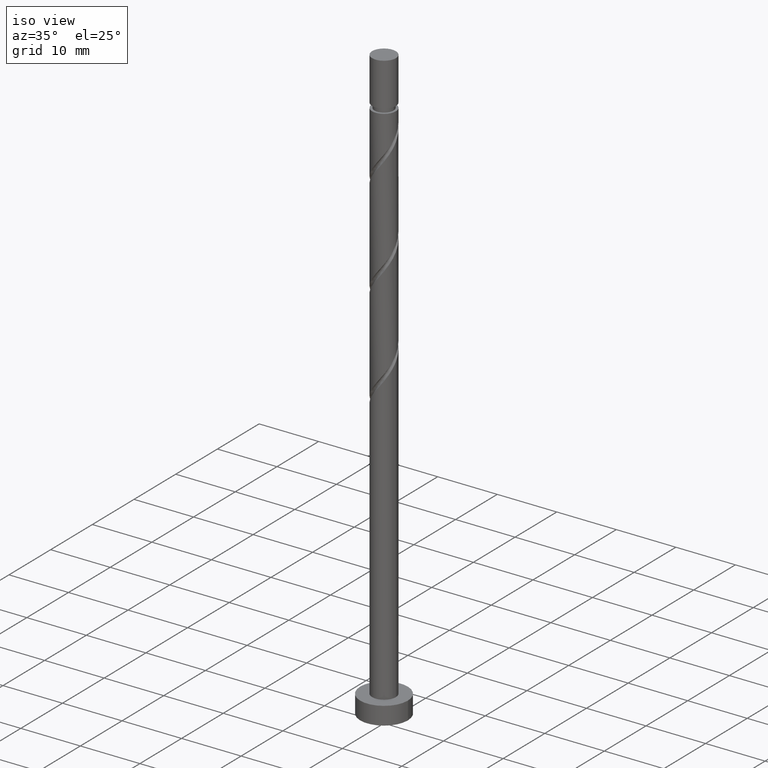
[diagram: clean part render]
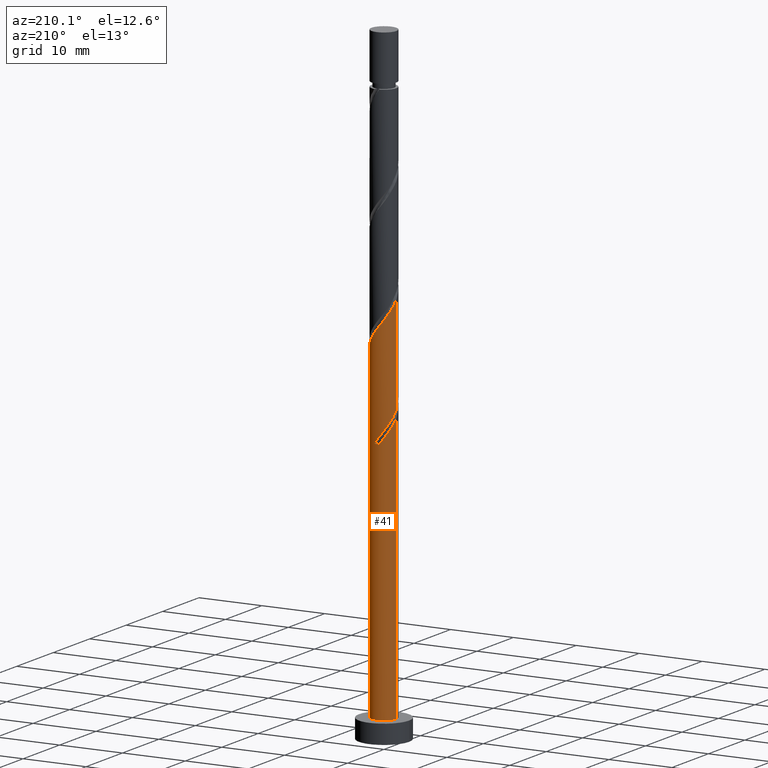
[diagram: tour spotlight — one face highlighted and labeled with its STEP entity id]
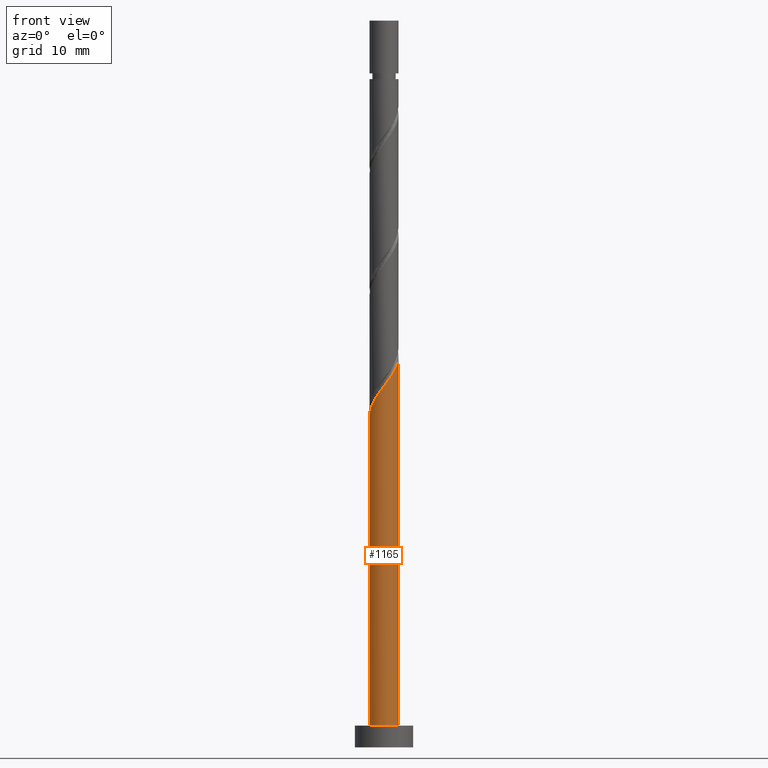
[diagram: tour spotlight — one face highlighted and labeled with its STEP entity id]
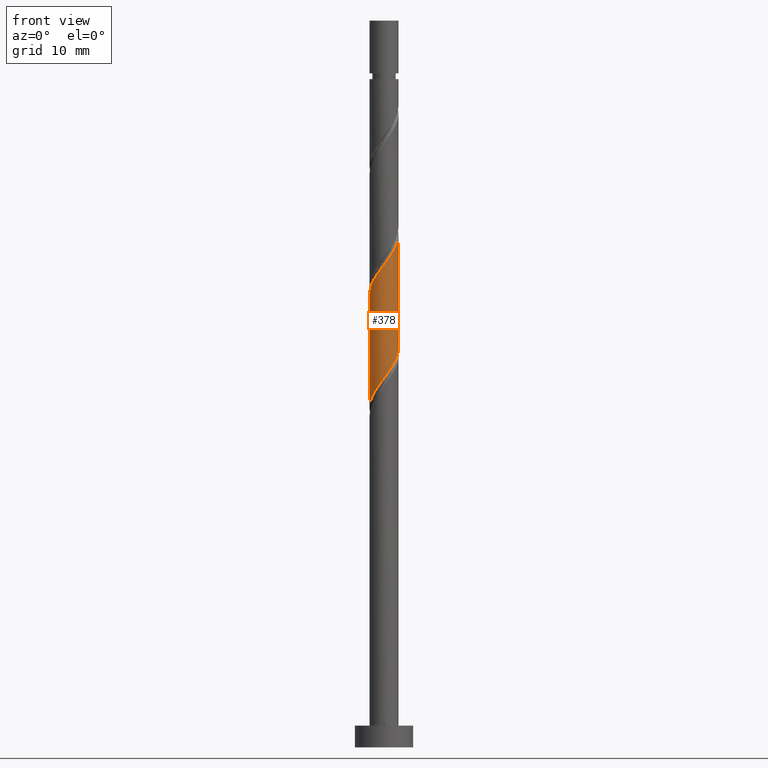
[diagram: tour spotlight — one face highlighted and labeled with its STEP entity id]
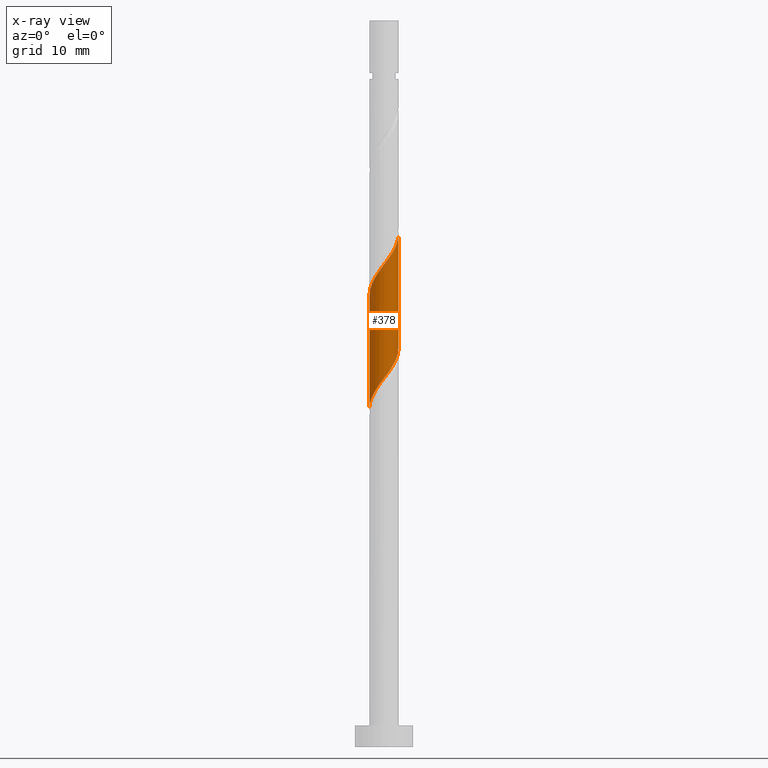
[diagram: x-ray of the same camera — body ghosted, this tour face saturated]
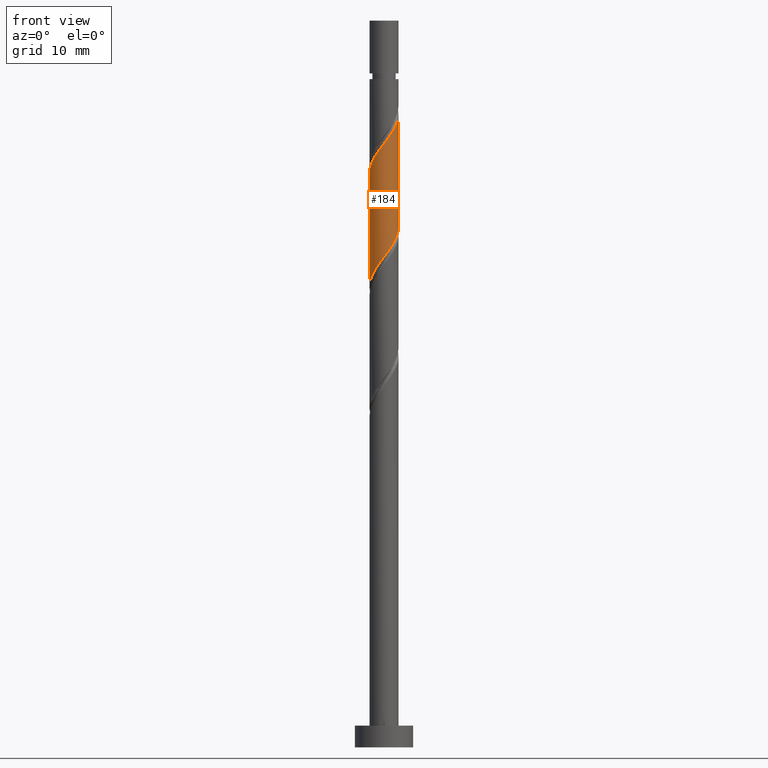
[diagram: tour spotlight — one face highlighted and labeled with its STEP entity id]
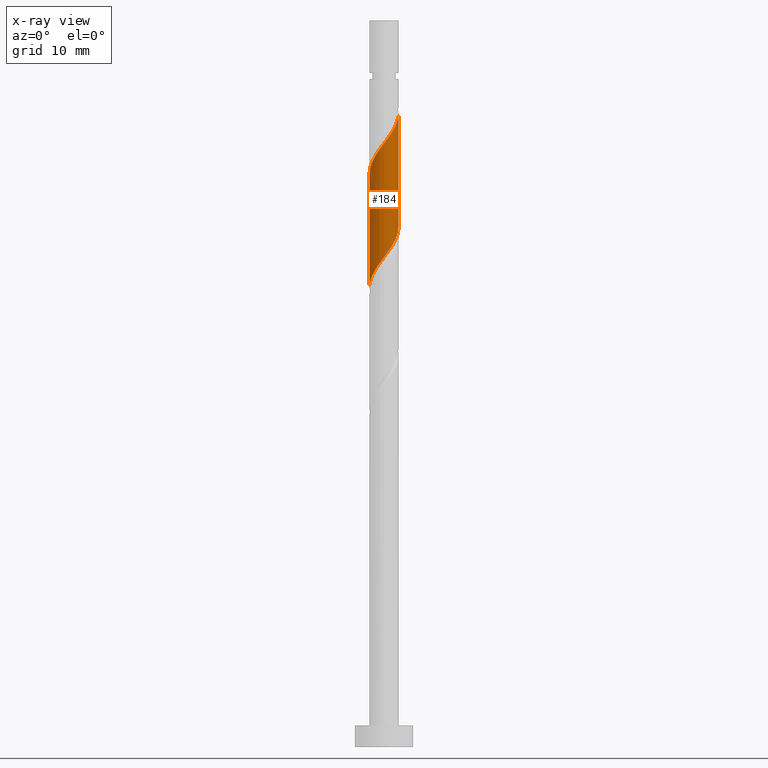
[diagram: x-ray of the same camera — body ghosted, this tour face saturated]
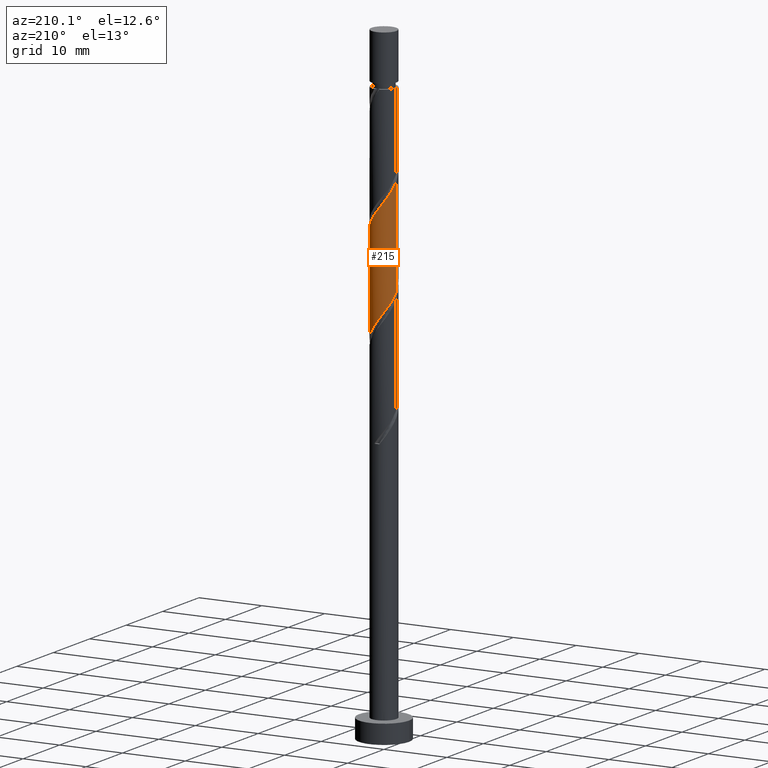
[diagram: tour spotlight — one face highlighted and labeled with its STEP entity id]
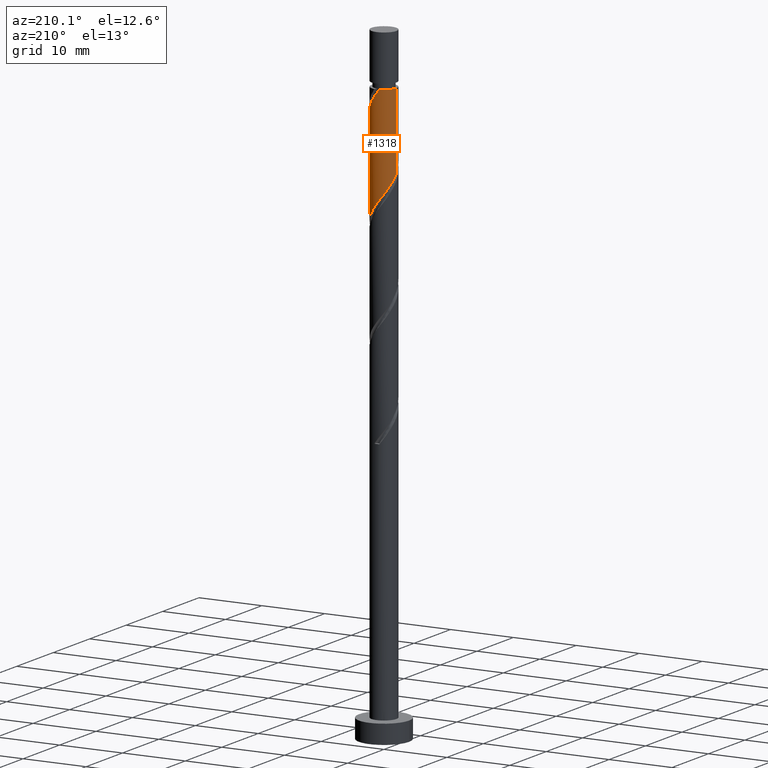
[diagram: tour spotlight — one face highlighted and labeled with its STEP entity id]
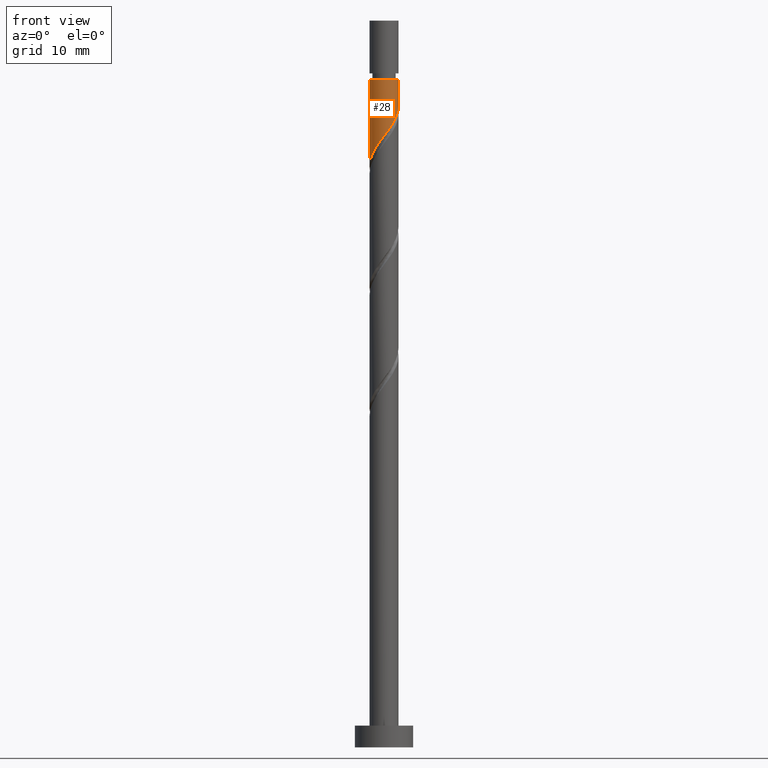
[diagram: tour spotlight — one face highlighted and labeled with its STEP entity id]
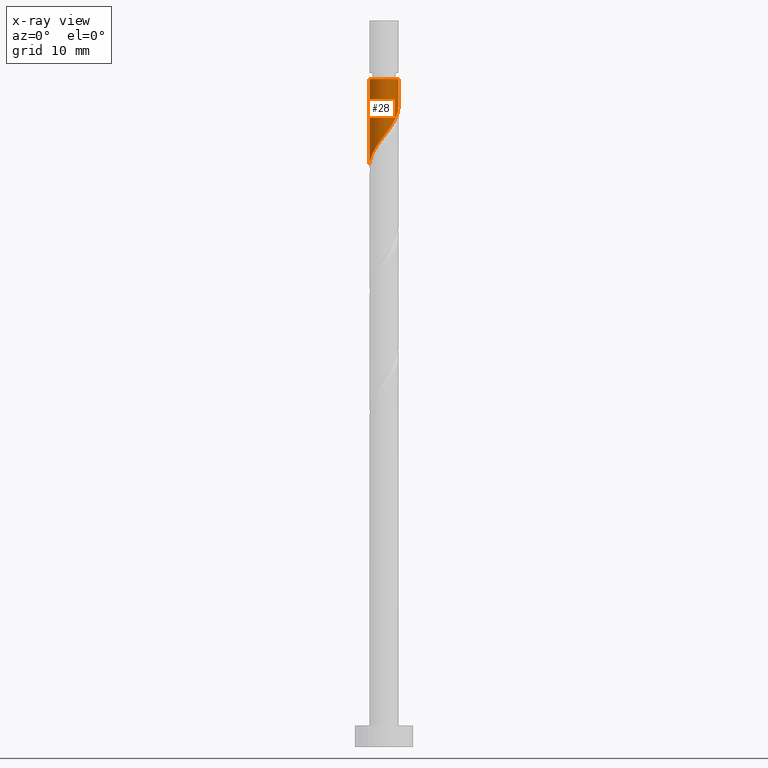
[diagram: x-ray of the same camera — body ghosted, this tour face saturated]
A machine part: a face-by-face anatomy tour. The part has 21 B-rep faces; the first image is the clean iso view, then the 7 largest visible faces are spotlighted one at a time (largest first), each with its STEP entity span.

Face 1 — auxiliary view, entity #41. In plain terms, the highlighted cylindrical surface (edge-blend (fillet) strip) has radius 2 mm, axis along (-0, -0, -1).
Definition (entity closure, byte-faithful):
#17 = CARTESIAN_POINT ( 'NONE',  ( -0.2963665399488012997, 1.977919835078958632, 42.86371364561979647 ) ) ;
#26 = CARTESIAN_POINT ( 'NONE',  ( -1.731988028307752225, 1.060463241372222365, 45.17852846043462023 ) ) ;
#41 = ADVANCED_FACE ( 'NONE', ( #404 ), #851, .T. ) ;
#52 = CARTESIAN_POINT ( 'NONE',  ( 2.000000000000003109, -1.639551578521584240E-15, 53.90693283137177616 ) ) ;
#60 = CARTESIAN_POINT ( 'NONE',  ( 1.999334298005952526, 0.05159810865775463218, 53.97482475673091074 ) ) ;
#67 = CARTESIAN_POINT ( 'NONE',  ( -1.044352421887821736, 1.705675238401805016, 59.53038031228648919 ) ) ;
#76 = CARTESIAN_POINT ( 'NONE',  ( -0.05239409265405620825, 2.030177252251149422, 58.14149142339759635 ) ) ;
#98 = DIRECTION ( 'NONE',  ( -1.000000000000000000, 0.000000000000000000, 0.000000000000000000 ) ) ;
#130 = ORIENTED_EDGE ( 'NONE', *, *, #1015, .F. ) ;
#173 = VECTOR ( 'NONE', #1319, 1000.000000000000000 ) ;
#179 = DIRECTION ( 'NONE',  ( -0.000000000000000000, -0.000000000000000000, -1.000000000000000000 ) ) ;
#188 = CARTESIAN_POINT ( 'NONE',  ( -0.3979949748426477307, 1.960000000000003073, 58.60445438636056537 ) ) ;
#189 = VERTEX_POINT ( 'NONE', #939 ) ;
#190 = CARTESIAN_POINT ( 'NONE',  ( -1.564745553853106985, 1.245620869966838962, 43.78963957154573450 ) ) ;
#194 = AXIS2_PLACEMENT_3D ( 'NONE', #738, #179, #98 ) ;
#253 = VERTEX_POINT ( 'NONE', #281 ) ;
#259 = CARTESIAN_POINT ( 'NONE',  ( -1.999999999999999556, 0.02580334866403881725, 46.60129190075028305 ) ) ;
#270 = EDGE_CURVE ( 'NONE', #1362, #507, #611, .T. ) ;
#281 = CARTESIAN_POINT ( 'NONE',  ( 0.3979949748426483414, 1.959999999999999964, 41.93778771969387975 ) ) ;
#289 = CARTESIAN_POINT ( 'NONE',  ( -0.9549818761181289029, 1.757273347059556734, 43.78963957154572739 ) ) ;
#302 = CARTESIAN_POINT ( 'NONE',  ( -2.000000000000003109, 1.598469420517626687E-15, 62.24026616470511186 ) ) ;
#303 = CARTESIAN_POINT ( 'NONE',  ( -2.000000000000002665, 0.3261087436409149110, 45.14367998567281859 ) ) ;
#309 = CARTESIAN_POINT ( 'NONE',  ( 1.498412303996177863, 1.324673758792283440, 55.82667660858277259 ) ) ;
#311 = CARTESIAN_POINT ( 'NONE',  ( -2.000000000000003109, 1.598469420517626687E-15, 45.57359949803844046 ) ) ;
#317 = EDGE_CURVE ( 'NONE', #189, #253, #821, .T. ) ;
#324 = CARTESIAN_POINT ( 'NONE',  ( -1.345108986744403046, 1.521527729054751976, 43.32667660858277969 ) ) ;
#371 = AXIS2_PLACEMENT_3D ( 'NONE', #470, #1401, #1272 ) ;
#376 = CARTESIAN_POINT ( 'NONE',  ( 0.3979949748426483414, 1.959999999999999964, 41.93778771969387975 ) ) ;
#404 = FACE_OUTER_BOUND ( 'NONE', #796, .T. ) ;
#405 = CARTESIAN_POINT ( 'NONE',  ( 2.000000000000003109, -1.639551578521584240E-15, 53.90693283137177616 ) ) ;
#432 = ORIENTED_EDGE ( 'NONE', *, *, #270, .F. ) ;
#434 = CARTESIAN_POINT ( 'NONE',  ( 0.000000000000000000, 0.000000000000000000, 41.93778771969387975 ) ) ;
#456 = VERTEX_POINT ( 'NONE', #405 ) ;
#470 = CARTESIAN_POINT ( 'NONE',  ( 0.000000000000000000, 0.000000000000000000, 3.000000000000000000 ) ) ;
#472 = EDGE_CURVE ( 'NONE', #456, #1034, #1225, .T. ) ;
#479 = EDGE_CURVE ( 'NONE', #1330, #1362, #1123, .T. ) ;
#493 = CARTESIAN_POINT ( 'NONE',  ( -1.999334298005948751, 0.05159810865775488892, 46.56741734932349175 ) ) ;
#505 = CARTESIAN_POINT ( 'NONE',  ( -1.896407278838826427, 0.6353262412077199661, 61.38223216413832972 ) ) ;
#507 = VERTEX_POINT ( 'NONE', #1087 ) ;
#509 = CARTESIAN_POINT ( 'NONE',  ( -1.498412303996175643, 1.324673758792281664, 44.71556549747164411 ) ) ;
#513 = CARTESIAN_POINT ( 'NONE',  ( 1.990236159296064011, 0.4041346888520223057, 54.43778771969389396 ) ) ;
#519 = CARTESIAN_POINT ( 'NONE',  ( 0.6451271725516614097, 1.925662417906774504, 57.21556549747167963 ) ) ;
#536 = CARTESIAN_POINT ( 'NONE',  ( 2.000000000000000000, 2.449293598294705921E-16, 3.000000000000000000 ) ) ;
#560 = CARTESIAN_POINT ( 'NONE',  ( -0.3979949748426476752, 1.960000000000003073, 41.93778771969387975 ) ) ;
#563 = EDGE_CURVE ( 'NONE', #1330, #253, #1214, .T. ) ;
#588 = CARTESIAN_POINT ( 'NONE',  ( -2.000000000000000000, 0.000000000000000000, 100.0000000000000000 ) ) ;
#609 = CARTESIAN_POINT ( 'NONE',  ( -1.564745553853106985, 1.245620869966838962, 60.45630623821239880 ) ) ;
#611 = LINE ( 'NONE', #926, #692 ) ;
#629 = ORIENTED_EDGE ( 'NONE', *, *, #1062, .F. ) ;
#637 = CARTESIAN_POINT ( 'NONE',  ( -1.896407278838826427, 0.6353262412077199661, 44.71556549747166542 ) ) ;
#652 = VERTEX_POINT ( 'NONE', #898 ) ;
#653 = CARTESIAN_POINT ( 'NONE',  ( -1.044352421887821736, 1.705675238401805016, 42.86371364561981068 ) ) ;
#692 = VECTOR ( 'NONE', #1282, 1000.000000000000000 ) ;
#699 = LINE ( 'NONE', #588, #1369 ) ;
#704 = CARTESIAN_POINT ( 'NONE',  ( -1.264836579684599949, 1.588884276212342295, 44.25260253450871062 ) ) ;
#712 = CARTESIAN_POINT ( 'NONE',  ( -1.990236159296060903, 0.4041346888520224168, 46.10445438636054405 ) ) ;
#738 = CARTESIAN_POINT ( 'NONE',  ( 0.000000000000000000, 0.000000000000000000, 100.0000000000000000 ) ) ;
#739 = CARTESIAN_POINT ( 'NONE',  ( -0.7435958570312400928, 1.889822747748857834, 42.40075068265684166 ) ) ;
#796 = EDGE_LOOP ( 'NONE', ( #629, #1086, #1002, #432, #985, #1106, #911, #130 ) ) ;
#821 =( BOUNDED_CURVE ( )  B_SPLINE_CURVE ( 2, ( #935, #259, #493, #712, #1302, #26, #509, #704, #289, #1150, #17, #1398, #376 ),
 .UNSPECIFIED., .F., .T. ) 
 B_SPLINE_CURVE_WITH_KNOTS ( ( 3, 2, 2, 2, 2, 2, 3 ),
 ( 0.9295248053855289516, 0.9305555555555555802, 0.9444444444444444198, 0.9583333333333333703, 0.9722222222222222099, 0.9861111111111111605, 1.000000000000000000 ),
 .UNSPECIFIED. ) 
 CURVE ( )  GEOMETRIC_REPRESENTATION_ITEM ( )  RATIONAL_B_SPLINE_CURVE ( ( 0.9071930855141195904, 0.9080659294509673130, 0.9090909090909075063, 0.8952797754656419693, 0.9090909090909075063, 0.8952797754656419693, 0.9090909090909075063, 0.8952797754656419693, 0.9090909090909075063, 0.8952797754656419693, 0.9090909090909075063, 0.8952797754656419693, 0.9090909090909075063 ) ) 
 REPRESENTATION_ITEM ( '' )  );
#848 = CARTESIAN_POINT ( 'NONE',  ( 0.2963665399488035757, 1.977919835078961075, 57.67852846043460602 ) ) ;
#851 = CYLINDRICAL_SURFACE ( 'NONE', #194, 2.000000000000000000 ) ;
#866 = CARTESIAN_POINT ( 'NONE',  ( -1.784382120961811369, 0.9697140108789262802, 60.91926920117536781 ) ) ;
#880 = CARTESIAN_POINT ( 'NONE',  ( 1.731988028307756222, 1.060463241372221921, 55.36371364561981068 ) ) ;
#881 = DIRECTION ( 'NONE',  ( 0.000000000000000000, -0.000000000000000000, -1.000000000000000000 ) ) ;
#898 = CARTESIAN_POINT ( 'NONE',  ( -2.000000000000003109, 1.598469420517626687E-15, 62.24026616470511186 ) ) ;
#911 = ORIENTED_EDGE ( 'NONE', *, *, #317, .F. ) ;
#926 = CARTESIAN_POINT ( 'NONE',  ( -2.000000000000000000, 0.000000000000000000, 100.0000000000000000 ) ) ;
#935 = CARTESIAN_POINT ( 'NONE',  ( -1.999999999999999556, -1.109218266106865353E-15, 46.63530927468264764 ) ) ;
#939 = CARTESIAN_POINT ( 'NONE',  ( -1.999999999999999556, -1.109218266106865156E-15, 46.63530927468264053 ) ) ;
#975 = CARTESIAN_POINT ( 'NONE',  ( -0.7435958570312400928, 1.889822747748857834, 59.06741734932352017 ) ) ;
#983 = CARTESIAN_POINT ( 'NONE',  ( 2.000000000000003553, 0.02580334866403354022, 53.94095020530412654 ) ) ;
#985 = ORIENTED_EDGE ( 'NONE', *, *, #479, .F. ) ;
#988 = EDGE_CURVE ( 'NONE', #1034, #507, #1077, .T. ) ;
#992 = CARTESIAN_POINT ( 'NONE',  ( 1.264836579684601947, 1.588884276212344737, 56.28963957154574871 ) ) ;
#1002 = ORIENTED_EDGE ( 'NONE', *, *, #988, .T. ) ;
#1015 = EDGE_CURVE ( 'NONE', #652, #189, #699, .T. ) ;
#1034 = VERTEX_POINT ( 'NONE', #536 ) ;
#1043 = DIRECTION ( 'NONE',  ( -0.000000000000000000, -0.000000000000000000, -1.000000000000000000 ) ) ;
#1062 = EDGE_CURVE ( 'NONE', #456, #652, #1274, .T. ) ;
#1077 = CIRCLE ( 'NONE', #371, 2.000000000000000000 ) ;
#1086 = ORIENTED_EDGE ( 'NONE', *, *, #472, .T. ) ;
#1087 = CARTESIAN_POINT ( 'NONE',  ( -2.000000000000000000, 0.000000000000000000, 3.000000000000000000 ) ) ;
#1106 = ORIENTED_EDGE ( 'NONE', *, *, #563, .T. ) ;
#1108 = CARTESIAN_POINT ( 'NONE',  ( -1.784382120961811369, 0.9697140108789262802, 44.25260253450870351 ) ) ;
#1123 =( BOUNDED_CURVE ( )  B_SPLINE_CURVE ( 2, ( #1338, #739, #653, #324, #190, #1108, #637, #303, #311 ),
 .UNSPECIFIED., .F., .T. ) 
 B_SPLINE_CURVE_WITH_KNOTS ( ( 3, 2, 2, 2, 3 ),
 ( 0.000000000000000000, 0.01388888888888883955, 0.02777777777777779011, 0.04166666666666662966, 0.05452480538552904182 ),
 .UNSPECIFIED. ) 
 CURVE ( )  GEOMETRIC_REPRESENTATION_ITEM ( )  RATIONAL_B_SPLINE_CURVE ( ( 0.9090909090909135015, 0.8952797754656478535, 0.9090909090909135015, 0.8952797754656478535, 0.9090909090909135015, 0.8952797754656478535, 0.9090909090909135015, 0.8963047551055880469, 0.9071930855141256966 ) ) 
 REPRESENTATION_ITEM ( '' )  );
#1150 = CARTESIAN_POINT ( 'NONE',  ( -0.6451271725516591893, 1.925662417906772728, 43.32667660858277259 ) ) ;
#1189 = CARTESIAN_POINT ( 'NONE',  ( 1.861112093801909895, 0.7322989651121217802, 54.90075068265686298 ) ) ;
#1214 = CIRCLE ( 'NONE', #1258, 2.000000000000000000 ) ;
#1225 = LINE ( 'NONE', #1422, #173 ) ;
#1258 = AXIS2_PLACEMENT_3D ( 'NONE', #434, #881, #1351 ) ;
#1272 = DIRECTION ( 'NONE',  ( 1.000000000000000000, 0.000000000000000000, 0.000000000000000000 ) ) ;
#1274 =( BOUNDED_CURVE ( )  B_SPLINE_CURVE ( 2, ( #52, #983, #60, #513, #1189, #880, #309, #992, #1447, #519, #848, #76, #188, #975, #67, #1334, #609, #866, #505, #1324, #302 ),
 .UNSPECIFIED., .F., .T. ) 
 B_SPLINE_CURVE_WITH_KNOTS ( ( 3, 2, 2, 2, 2, 2, 2, 2, 2, 2, 3 ),
 ( 0.1795248053855287573, 0.1805555555555555802, 0.1944444444444444198, 0.2083333333333333703, 0.2222222222222222099, 0.2361111111111111605, 0.2500000000000000000, 0.2638888888888888395, 0.2777777777777777901, 0.2916666666666666297, 0.3045248053855290071 ),
 .UNSPECIFIED. ) 
 CURVE ( )  GEOMETRIC_REPRESENTATION_ITEM ( )  RATIONAL_B_SPLINE_CURVE ( ( 0.9071930855141252525, 0.9080659294509730861, 0.9090909090909135015, 0.8952797754656478535, 0.9090909090909135015, 0.8952797754656478535, 0.9090909090909135015, 0.8952797754656478535, 0.9090909090909135015, 0.8952797754656478535, 0.9090909090909135015, 0.8952797754656478535, 0.9090909090909135015, 0.8952797754656478535, 0.9090909090909135015, 0.8952797754656478535, 0.9090909090909135015, 0.8952797754656478535, 0.9090909090909135015, 0.8963047551055880469, 0.9071930855141256966 ) ) 
 REPRESENTATION_ITEM ( '' )  );
#1282 = DIRECTION ( 'NONE',  ( -0.000000000000000000, -0.000000000000000000, -1.000000000000000000 ) ) ;
#1302 = CARTESIAN_POINT ( 'NONE',  ( -1.861112093801905676, 0.7322989651121220023, 45.64149142339758214 ) ) ;
#1319 = DIRECTION ( 'NONE',  ( -0.000000000000000000, -0.000000000000000000, -1.000000000000000000 ) ) ;
#1324 = CARTESIAN_POINT ( 'NONE',  ( -2.000000000000002665, 0.3261087436409157991, 61.81034665233951131 ) ) ;
#1330 = VERTEX_POINT ( 'NONE', #560 ) ;
#1334 = CARTESIAN_POINT ( 'NONE',  ( -1.345108986744403046, 1.521527729054751976, 59.99334327524943689 ) ) ;
#1338 = CARTESIAN_POINT ( 'NONE',  ( -0.3979949748426476752, 1.960000000000003073, 41.93778771969387975 ) ) ;
#1343 = CARTESIAN_POINT ( 'NONE',  ( -2.000000000000003109, 1.598469420517626687E-15, 45.57359949803844046 ) ) ;
#1351 = DIRECTION ( 'NONE',  ( -1.000000000000000000, 0.000000000000000000, 0.000000000000000000 ) ) ;
#1362 = VERTEX_POINT ( 'NONE', #1343 ) ;
#1369 = VECTOR ( 'NONE', #1043, 1000.000000000000000 ) ;
#1398 = CARTESIAN_POINT ( 'NONE',  ( 0.05239409265405651356, 2.030177252251145870, 42.40075068265684877 ) ) ;
#1401 = DIRECTION ( 'NONE',  ( 0.000000000000000000, 0.000000000000000000, 1.000000000000000000 ) ) ;
#1422 = CARTESIAN_POINT ( 'NONE',  ( 2.000000000000000000, 2.449293598294705921E-16, 100.0000000000000000 ) ) ;
#1447 = CARTESIAN_POINT ( 'NONE',  ( 0.9549818761181315674, 1.757273347059558954, 56.75260253450870351 ) ) ;

Face 2 — front view, entity #1165. In plain terms, the highlighted cylindrical surface (edge-blend (fillet) strip) has radius 2 mm, axis along (-0, -0, -1).
Definition (entity closure, byte-faithful):
#14 = CARTESIAN_POINT ( 'NONE',  ( 1.784382120961811369, -0.9697140108789268353, 52.58593586784203211 ) ) ;
#23 = CARTESIAN_POINT ( 'NONE',  ( -1.264836579684601725, -1.588884276212344959, 47.95630623821242011 ) ) ;
#79 = ORIENTED_EDGE ( 'NONE', *, *, #830, .T. ) ;
#102 = EDGE_CURVE ( 'NONE', #1362, #456, #233, .T. ) ;
#125 = CARTESIAN_POINT ( 'NONE',  ( -1.999334298005952526, -0.05159810865775447952, 45.64149142339757503 ) ) ;
#135 = CARTESIAN_POINT ( 'NONE',  ( 2.000000000000000444, -0.3261087436409231266, 53.47701331900616850 ) ) ;
#173 = VECTOR ( 'NONE', #1319, 1000.000000000000000 ) ;
#214 = ORIENTED_EDGE ( 'NONE', *, *, #472, .F. ) ;
#233 =( BOUNDED_CURVE ( )  B_SPLINE_CURVE ( 2, ( #818, #1374, #125, #366, #1396, #257, #250, #23, #913, #698, #380, #1271, #924, #1386, #1048, #931, #702, #14, #919, #135, #577 ),
 .UNSPECIFIED., .F., .T. ) 
 B_SPLINE_CURVE_WITH_KNOTS ( ( 3, 2, 2, 2, 2, 2, 2, 2, 2, 2, 3 ),
 ( 0.05452480538552904182, 0.05555555555555558023, 0.06944444444444441977, 0.08333333333333337034, 0.09722222222222220989, 0.1111111111111111605, 0.1250000000000000000, 0.1388888888888888395, 0.1527777777777777901, 0.1666666666666666297, 0.1795248053855287573 ),
 .UNSPECIFIED. ) 
 CURVE ( )  GEOMETRIC_REPRESENTATION_ITEM ( )  RATIONAL_B_SPLINE_CURVE ( ( 0.9071930855141256966, 0.9080659294509734192, 0.9090909090909135015, 0.8952797754656478535, 0.9090909090909135015, 0.8952797754656478535, 0.9090909090909135015, 0.8952797754656478535, 0.9090909090909135015, 0.8952797754656478535, 0.9090909090909135015, 0.8952797754656478535, 0.9090909090909135015, 0.8952797754656478535, 0.9090909090909135015, 0.8952797754656478535, 0.9090909090909135015, 0.8952797754656478535, 0.9090909090909135015, 0.8963047551055882689, 0.9071930855141252525 ) ) 
 REPRESENTATION_ITEM ( '' )  );
#234 = CARTESIAN_POINT ( 'NONE',  ( 0.000000000000000000, 0.000000000000000000, 3.000000000000000000 ) ) ;
#250 = CARTESIAN_POINT ( 'NONE',  ( -1.498412303996178307, -1.324673758792282996, 47.49334327524944399 ) ) ;
#257 = CARTESIAN_POINT ( 'NONE',  ( -1.731988028307755778, -1.060463241372223475, 47.03038031228647498 ) ) ;
#270 = EDGE_CURVE ( 'NONE', #1362, #507, #611, .T. ) ;
#293 = CARTESIAN_POINT ( 'NONE',  ( 0.000000000000000000, 0.000000000000000000, 100.0000000000000000 ) ) ;
#310 = EDGE_LOOP ( 'NONE', ( #214, #1009, #636, #79 ) ) ;
#366 = CARTESIAN_POINT ( 'NONE',  ( -1.990236159296064011, -0.4041346888520225278, 46.10445438636055826 ) ) ;
#380 = CARTESIAN_POINT ( 'NONE',  ( -0.2963665399488021879, -1.977919835078961963, 49.34519512710128453 ) ) ;
#402 = CYLINDRICAL_SURFACE ( 'NONE', #504, 2.000000000000000000 ) ;
#405 = CARTESIAN_POINT ( 'NONE',  ( 2.000000000000003109, -1.639551578521584240E-15, 53.90693283137177616 ) ) ;
#456 = VERTEX_POINT ( 'NONE', #405 ) ;
#472 = EDGE_CURVE ( 'NONE', #456, #1034, #1225, .T. ) ;
#504 = AXIS2_PLACEMENT_3D ( 'NONE', #293, #619, #1098 ) ;
#507 = VERTEX_POINT ( 'NONE', #1087 ) ;
#536 = CARTESIAN_POINT ( 'NONE',  ( 2.000000000000000000, 2.449293598294705921E-16, 3.000000000000000000 ) ) ;
#577 = CARTESIAN_POINT ( 'NONE',  ( 2.000000000000003109, -1.639551578521584240E-15, 53.90693283137177616 ) ) ;
#611 = LINE ( 'NONE', #926, #692 ) ;
#619 = DIRECTION ( 'NONE',  ( -0.000000000000000000, -0.000000000000000000, -1.000000000000000000 ) ) ;
#636 = ORIENTED_EDGE ( 'NONE', *, *, #270, .T. ) ;
#680 = DIRECTION ( 'NONE',  ( 0.000000000000000000, 0.000000000000000000, 1.000000000000000000 ) ) ;
#692 = VECTOR ( 'NONE', #1282, 1000.000000000000000 ) ;
#698 = CARTESIAN_POINT ( 'NONE',  ( -0.6451271725516604105, -1.925662417906775170, 48.88223216413832972 ) ) ;
#702 = CARTESIAN_POINT ( 'NONE',  ( 1.564745553853106985, -1.245620869966838962, 52.12297290487906309 ) ) ;
#818 = CARTESIAN_POINT ( 'NONE',  ( -2.000000000000003109, 1.598469420517626687E-15, 45.57359949803844046 ) ) ;
#830 = EDGE_CURVE ( 'NONE', #507, #1034, #905, .T. ) ;
#905 = CIRCLE ( 'NONE', #1216, 2.000000000000000000 ) ;
#913 = CARTESIAN_POINT ( 'NONE',  ( -0.9549818761181312343, -1.757273347059559399, 48.41926920117536071 ) ) ;
#919 = CARTESIAN_POINT ( 'NONE',  ( 1.896407278838826205, -0.6353262412077205212, 53.04889883080500113 ) ) ;
#924 = CARTESIAN_POINT ( 'NONE',  ( 0.3979949748426478973, -1.960000000000003073, 50.27112105302722256 ) ) ;
#926 = CARTESIAN_POINT ( 'NONE',  ( -2.000000000000000000, 0.000000000000000000, 100.0000000000000000 ) ) ;
#931 = CARTESIAN_POINT ( 'NONE',  ( 1.345108986744402824, -1.521527729054752864, 51.66000994191610829 ) ) ;
#1009 = ORIENTED_EDGE ( 'NONE', *, *, #102, .F. ) ;
#1034 = VERTEX_POINT ( 'NONE', #536 ) ;
#1048 = CARTESIAN_POINT ( 'NONE',  ( 1.044352421887821736, -1.705675238401805016, 51.19704697895314638 ) ) ;
#1087 = CARTESIAN_POINT ( 'NONE',  ( -2.000000000000000000, 0.000000000000000000, 3.000000000000000000 ) ) ;
#1098 = DIRECTION ( 'NONE',  ( -1.000000000000000000, 0.000000000000000000, 0.000000000000000000 ) ) ;
#1126 = DIRECTION ( 'NONE',  ( 1.000000000000000000, 0.000000000000000000, 0.000000000000000000 ) ) ;
#1165 = ADVANCED_FACE ( 'NONE', ( #1420 ), #402, .T. ) ;
#1216 = AXIS2_PLACEMENT_3D ( 'NONE', #234, #680, #1126 ) ;
#1225 = LINE ( 'NONE', #1422, #173 ) ;
#1271 = CARTESIAN_POINT ( 'NONE',  ( 0.05239409265405556987, -2.030177252251149422, 49.80815809006425354 ) ) ;
#1282 = DIRECTION ( 'NONE',  ( -0.000000000000000000, -0.000000000000000000, -1.000000000000000000 ) ) ;
#1319 = DIRECTION ( 'NONE',  ( -0.000000000000000000, -0.000000000000000000, -1.000000000000000000 ) ) ;
#1343 = CARTESIAN_POINT ( 'NONE',  ( -2.000000000000003109, 1.598469420517626687E-15, 45.57359949803844046 ) ) ;
#1362 = VERTEX_POINT ( 'NONE', #1343 ) ;
#1374 = CARTESIAN_POINT ( 'NONE',  ( -2.000000000000003109, -0.02580334866404060054, 45.60761687197079794 ) ) ;
#1386 = CARTESIAN_POINT ( 'NONE',  ( 0.7435958570312396487, -1.889822747748858500, 50.73408401599017736 ) ) ;
#1396 = CARTESIAN_POINT ( 'NONE',  ( -1.861112093801908784, -0.7322989651121224464, 46.56741734932352017 ) ) ;
#1420 = FACE_OUTER_BOUND ( 'NONE', #310, .T. ) ;
#1422 = CARTESIAN_POINT ( 'NONE',  ( 2.000000000000000000, 2.449293598294705921E-16, 100.0000000000000000 ) ) ;

Face 3 — front view, entity #378. An x-ray twin of the same camera follows (body ghosted, this face saturated) — the face is partly hidden behind the body. In plain terms, the highlighted cylindrical surface (edge-blend (fillet) strip) has radius 2 mm, axis along (-0, -0, -1).
Definition (entity closure, byte-faithful):
#15 = CARTESIAN_POINT ( 'NONE',  ( 2.000000000000000000, 3.323920056683871498E-16, 54.96864260801596203 ) ) ;
#33 = CARTESIAN_POINT ( 'NONE',  ( 2.000000000000000000, 2.449293598294705921E-16, 100.0000000000000000 ) ) ;
#78 = CARTESIAN_POINT ( 'NONE',  ( 0.6451271725516586342, -1.925662417906772728, 51.66000994191610118 ) ) ;
#110 = CARTESIAN_POINT ( 'NONE',  ( 1.345108986744402824, -1.521527729054752864, 68.32667660858278680 ) ) ;
#118 = CARTESIAN_POINT ( 'NONE',  ( -1.498412303996178307, -1.324673758792282996, 64.16000994191610118 ) ) ;
#138 = DIRECTION ( 'NONE',  ( -0.000000000000000000, -0.000000000000000000, -1.000000000000000000 ) ) ;
#180 = CARTESIAN_POINT ( 'NONE',  ( -1.896407278838823762, -0.6353262412077178567, 47.49334327524941557 ) ) ;
#189 = VERTEX_POINT ( 'NONE', #939 ) ;
#199 = CARTESIAN_POINT ( 'NONE',  ( 2.000000000000000000, -0.02580334866403955971, 54.93462523408361164 ) ) ;
#202 = ORIENTED_EDGE ( 'NONE', *, *, #482, .F. ) ;
#208 = CARTESIAN_POINT ( 'NONE',  ( 0.9549818761181289029, -1.757273347059556734, 52.12297290487905599 ) ) ;
#242 = CARTESIAN_POINT ( 'NONE',  ( -1.731988028307755778, -1.060463241372223475, 63.69704697895314638 ) ) ;
#271 = CYLINDRICAL_SURFACE ( 'NONE', #1027, 2.000000000000000000 ) ;
#331 = CARTESIAN_POINT ( 'NONE',  ( 0.05239409265405556987, -2.030177252251149422, 66.47482475673092495 ) ) ;
#345 = CARTESIAN_POINT ( 'NONE',  ( -2.000000000000003109, 1.598469420517626687E-15, 62.24026616470511186 ) ) ;
#354 = CARTESIAN_POINT ( 'NONE',  ( 1.896407278838826205, -0.6353262412077205212, 69.71556549747165832 ) ) ;
#378 = ADVANCED_FACE ( 'NONE', ( #388 ), #271, .T. ) ;
#388 = FACE_OUTER_BOUND ( 'NONE', #874, .T. ) ;
#396 = VECTOR ( 'NONE', #819, 1000.000000000000000 ) ;
#460 = CARTESIAN_POINT ( 'NONE',  ( -1.999334298005952526, -0.05159810865775447952, 62.30815809006424644 ) ) ;
#482 = EDGE_CURVE ( 'NONE', #1018, #189, #825, .T. ) ;
#514 = CARTESIAN_POINT ( 'NONE',  ( 1.264836579684599505, -1.588884276212342295, 52.58593586784202500 ) ) ;
#554 = CARTESIAN_POINT ( 'NONE',  ( 2.000000000000004885, -0.3261087436409101925, 70.14367998567284701 ) ) ;
#564 =( BOUNDED_CURVE ( )  B_SPLINE_CURVE ( 2, ( #345, #1030, #460, #567, #1024, #242, #118, #907, #1122, #1245, #1345, #331, #669, #1481, #1370, #110, #1231, #1133, #354, #554, #775 ),
 .UNSPECIFIED., .F., .T. ) 
 B_SPLINE_CURVE_WITH_KNOTS ( ( 3, 2, 2, 2, 2, 2, 2, 2, 2, 2, 3 ),
 ( 0.3045248053855290071, 0.3055555555555555802, 0.3194444444444444198, 0.3333333333333333703, 0.3472222222222222099, 0.3611111111111111605, 0.3750000000000000000, 0.3888888888888888395, 0.4027777777777777901, 0.4166666666666666297, 0.4295248053855292847 ),
 .UNSPECIFIED. ) 
 CURVE ( )  GEOMETRIC_REPRESENTATION_ITEM ( )  RATIONAL_B_SPLINE_CURVE ( ( 0.9071930855141256966, 0.9080659294509734192, 0.9090909090909135015, 0.8952797754656478535, 0.9090909090909135015, 0.8952797754656478535, 0.9090909090909135015, 0.8952797754656478535, 0.9090909090909135015, 0.8952797754656478535, 0.9090909090909135015, 0.8952797754656478535, 0.9090909090909135015, 0.8952797754656478535, 0.9090909090909135015, 0.8952797754656478535, 0.9090909090909135015, 0.8952797754656478535, 0.9090909090909135015, 0.8963047551055877138, 0.9071930855141261407 ) ) 
 REPRESENTATION_ITEM ( '' )  );
#567 = CARTESIAN_POINT ( 'NONE',  ( -1.990236159296064011, -0.4041346888520225278, 62.77112105302721545 ) ) ;
#573 = ORIENTED_EDGE ( 'NONE', *, *, #980, .F. ) ;
#588 = CARTESIAN_POINT ( 'NONE',  ( -2.000000000000000000, 0.000000000000000000, 100.0000000000000000 ) ) ;
#622 = CARTESIAN_POINT ( 'NONE',  ( -0.7435958570312399818, -1.889822747748854725, 49.80815809006426065 ) ) ;
#628 = CARTESIAN_POINT ( 'NONE',  ( 2.000000000000003109, -1.639551578521584240E-15, 70.57359949803847599 ) ) ;
#630 = CARTESIAN_POINT ( 'NONE',  ( 1.498412303996175421, -1.324673758792282108, 53.04889883080499402 ) ) ;
#652 = VERTEX_POINT ( 'NONE', #898 ) ;
#669 = CARTESIAN_POINT ( 'NONE',  ( 0.3979949748426478973, -1.960000000000003073, 66.93778771969387265 ) ) ;
#699 = LINE ( 'NONE', #588, #1369 ) ;
#723 = EDGE_CURVE ( 'NONE', #652, #1162, #564, .T. ) ;
#745 = CARTESIAN_POINT ( 'NONE',  ( 1.999334298005949195, -0.05159810865775558281, 54.90075068265682745 ) ) ;
#753 = CARTESIAN_POINT ( 'NONE',  ( -0.3979949748426480638, -1.959999999999999520, 50.27112105302721545 ) ) ;
#761 = CARTESIAN_POINT ( 'NONE',  ( 1.861112093801905676, -0.7322989651121217802, 53.97482475673090363 ) ) ;
#771 = CARTESIAN_POINT ( 'NONE',  ( 0.2963665399488011332, -1.977919835078958632, 51.19704697895313927 ) ) ;
#775 = CARTESIAN_POINT ( 'NONE',  ( 2.000000000000003109, -1.639551578521584240E-15, 70.57359949803847599 ) ) ;
#782 = ORIENTED_EDGE ( 'NONE', *, *, #723, .F. ) ;
#819 = DIRECTION ( 'NONE',  ( -0.000000000000000000, -0.000000000000000000, -1.000000000000000000 ) ) ;
#825 =( BOUNDED_CURVE ( )  B_SPLINE_CURVE ( 2, ( #853, #199, #745, #1193, #761, #1202, #630, #514, #208, #78, #771, #1215, #753, #622, #1331, #1451, #1093, #868, #180, #1082, #1326 ),
 .UNSPECIFIED., .F., .T. ) 
 B_SPLINE_CURVE_WITH_KNOTS ( ( 3, 2, 2, 2, 2, 2, 2, 2, 2, 2, 3 ),
 ( 0.8045248053855289516, 0.8055555555555555802, 0.8194444444444444198, 0.8333333333333333703, 0.8472222222222222099, 0.8611111111111111605, 0.8750000000000000000, 0.8888888888888888395, 0.9027777777777777901, 0.9166666666666666297, 0.9295248053855289516 ),
 .UNSPECIFIED. ) 
 CURVE ( )  GEOMETRIC_REPRESENTATION_ITEM ( )  RATIONAL_B_SPLINE_CURVE ( ( 0.9071930855141195904, 0.9080659294509673130, 0.9090909090909075063, 0.8952797754656419693, 0.9090909090909075063, 0.8952797754656419693, 0.9090909090909075063, 0.8952797754656419693, 0.9090909090909075063, 0.8952797754656419693, 0.9090909090909075063, 0.8952797754656419693, 0.9090909090909075063, 0.8952797754656419693, 0.9090909090909075063, 0.8952797754656419693, 0.9090909090909075063, 0.8952797754656419693, 0.9090909090909075063, 0.8963047551055821627, 0.9071930855141195904 ) ) 
 REPRESENTATION_ITEM ( '' )  );
#853 = CARTESIAN_POINT ( 'NONE',  ( 2.000000000000000000, 3.323920056683871498E-16, 54.96864260801596203 ) ) ;
#868 = CARTESIAN_POINT ( 'NONE',  ( -1.784382120961808926, -0.9697140108789243929, 47.95630623821240590 ) ) ;
#874 = EDGE_LOOP ( 'NONE', ( #573, #782, #1431, #202 ) ) ;
#898 = CARTESIAN_POINT ( 'NONE',  ( -2.000000000000003109, 1.598469420517626687E-15, 62.24026616470511186 ) ) ;
#907 = CARTESIAN_POINT ( 'NONE',  ( -1.264836579684601725, -1.588884276212344959, 64.62297290487909152 ) ) ;
#939 = CARTESIAN_POINT ( 'NONE',  ( -1.999999999999999556, -1.109218266106865156E-15, 46.63530927468264053 ) ) ;
#980 = EDGE_CURVE ( 'NONE', #1162, #1018, #1049, .T. ) ;
#1015 = EDGE_CURVE ( 'NONE', #652, #189, #699, .T. ) ;
#1018 = VERTEX_POINT ( 'NONE', #15 ) ;
#1024 = CARTESIAN_POINT ( 'NONE',  ( -1.861112093801908784, -0.7322989651121224464, 63.23408401599019157 ) ) ;
#1027 = AXIS2_PLACEMENT_3D ( 'NONE', #1075, #138, #1161 ) ;
#1030 = CARTESIAN_POINT ( 'NONE',  ( -2.000000000000002665, -0.02580334866403974706, 62.27428353863746935 ) ) ;
#1043 = DIRECTION ( 'NONE',  ( -0.000000000000000000, -0.000000000000000000, -1.000000000000000000 ) ) ;
#1049 = LINE ( 'NONE', #33, #396 ) ;
#1075 = CARTESIAN_POINT ( 'NONE',  ( 0.000000000000000000, 0.000000000000000000, 100.0000000000000000 ) ) ;
#1082 = CARTESIAN_POINT ( 'NONE',  ( -1.999999999999999112, -0.3261087436409161877, 47.06522878704827662 ) ) ;
#1093 = CARTESIAN_POINT ( 'NONE',  ( -1.564745553853104765, -1.245620869966836963, 48.41926920117534650 ) ) ;
#1122 = CARTESIAN_POINT ( 'NONE',  ( -0.9549818761181312343, -1.757273347059559399, 65.08593586784202500 ) ) ;
#1133 = CARTESIAN_POINT ( 'NONE',  ( 1.784382120961811369, -0.9697140108789268353, 69.25260253450873904 ) ) ;
#1161 = DIRECTION ( 'NONE',  ( -1.000000000000000000, 0.000000000000000000, 0.000000000000000000 ) ) ;
#1162 = VERTEX_POINT ( 'NONE', #628 ) ;
#1193 = CARTESIAN_POINT ( 'NONE',  ( 1.990236159296060903, -0.4041346888520226943, 54.43778771969388686 ) ) ;
#1202 = CARTESIAN_POINT ( 'NONE',  ( 1.731988028307752003, -1.060463241372222809, 53.51186179376795593 ) ) ;
#1215 = CARTESIAN_POINT ( 'NONE',  ( -0.05239409265405726296, -2.030177252251145870, 50.73408401599017026 ) ) ;
#1231 = CARTESIAN_POINT ( 'NONE',  ( 1.564745553853106985, -1.245620869966838962, 68.78963957154572029 ) ) ;
#1245 = CARTESIAN_POINT ( 'NONE',  ( -0.6451271725516604105, -1.925662417906775170, 65.54889883080500113 ) ) ;
#1326 = CARTESIAN_POINT ( 'NONE',  ( -1.999999999999999556, -1.109218266106865353E-15, 46.63530927468264764 ) ) ;
#1331 = CARTESIAN_POINT ( 'NONE',  ( -1.044352421887820626, -1.705675238401801908, 49.34519512710128453 ) ) ;
#1345 = CARTESIAN_POINT ( 'NONE',  ( -0.2963665399488021879, -1.977919835078961963, 66.01186179376796304 ) ) ;
#1369 = VECTOR ( 'NONE', #1043, 1000.000000000000000 ) ;
#1370 = CARTESIAN_POINT ( 'NONE',  ( 1.044352421887821736, -1.705675238401805016, 67.86371364561979647 ) ) ;
#1431 = ORIENTED_EDGE ( 'NONE', *, *, #1015, .T. ) ;
#1451 = CARTESIAN_POINT ( 'NONE',  ( -1.345108986744401047, -1.521527729054749978, 48.88223216413832972 ) ) ;
#1481 = CARTESIAN_POINT ( 'NONE',  ( 0.7435958570312396487, -1.889822747748858500, 67.40075068265686298 ) ) ;

Face 4 — front view, entity #184. An x-ray twin of the same camera follows (body ghosted, this face saturated) — the face is partly hidden behind the body. In plain terms, the highlighted cylindrical surface (edge-blend (fillet) strip) has radius 2 mm, axis along (-0, -0, -1).
Definition (entity closure, byte-faithful):
#8 = CARTESIAN_POINT ( 'NONE',  ( 1.345108986744402824, -1.521527729054752864, 84.99334327524947241 ) ) ;
#43 = CARTESIAN_POINT ( 'NONE',  ( -1.990236159296064011, -0.4041346888520225278, 79.43778771969390107 ) ) ;
#94 = CARTESIAN_POINT ( 'NONE',  ( -2.000000000000003109, -9.635633422746439477E-16, 78.90693283137180458 ) ) ;
#139 = VERTEX_POINT ( 'NONE', #691 ) ;
#141 = CARTESIAN_POINT ( 'NONE',  ( -1.498412303996178307, -1.324673758792282996, 80.82667660858278680 ) ) ;
#150 = CARTESIAN_POINT ( 'NONE',  ( 1.861112093801905676, -0.7322989651121217802, 70.64149142339756793 ) ) ;
#160 = CARTESIAN_POINT ( 'NONE',  ( 0.6451271725516586342, -1.925662417906772728, 68.32667660858277259 ) ) ;
#184 = ADVANCED_FACE ( 'NONE', ( #1042 ), #489, .T. ) ;
#196 = CARTESIAN_POINT ( 'NONE',  ( -1.044352421887820626, -1.705675238401801908, 66.01186179376793461 ) ) ;
#227 = LINE ( 'NONE', #798, #858 ) ;
#244 = ORIENTED_EDGE ( 'NONE', *, *, #569, .T. ) ;
#258 = CARTESIAN_POINT ( 'NONE',  ( 0.3979949748426478973, -1.960000000000003073, 83.60445438636055826 ) ) ;
#261 = CARTESIAN_POINT ( 'NONE',  ( -0.9549818761181312343, -1.757273347059559399, 81.75260253450869641 ) ) ;
#268 = CARTESIAN_POINT ( 'NONE',  ( 1.999334298005949195, -0.05159810865775558281, 71.56741734932347754 ) ) ;
#278 = CARTESIAN_POINT ( 'NONE',  ( 0.9549818761181289029, -1.757273347059556734, 68.78963957154570608 ) ) ;
#286 = CARTESIAN_POINT ( 'NONE',  ( 0.05239409265405556987, -2.030177252251149422, 83.14149142339759635 ) ) ;
#359 = CARTESIAN_POINT ( 'NONE',  ( 0.000000000000000000, 0.000000000000000000, 100.0000000000000000 ) ) ;
#367 = CARTESIAN_POINT ( 'NONE',  ( 2.000000000000004885, -0.3261087436409104146, 86.81034665233953262 ) ) ;
#381 = CARTESIAN_POINT ( 'NONE',  ( -1.264836579684601725, -1.588884276212344959, 81.28963957154574871 ) ) ;
#394 = CARTESIAN_POINT ( 'NONE',  ( -1.731988028307755778, -1.060463241372223475, 80.36371364561985331 ) ) ;
#418 = CARTESIAN_POINT ( 'NONE',  ( -2.000000000000000000, -0.3261087436409134122, 63.73189545371492670 ) ) ;
#433 = CARTESIAN_POINT ( 'NONE',  ( -1.896407278838823762, -0.6353262412077178567, 64.16000994191610118 ) ) ;
#454 = ORIENTED_EDGE ( 'NONE', *, *, #1045, .F. ) ;
#459 = CARTESIAN_POINT ( 'NONE',  ( -1.999999999999999556, -1.109218266106865156E-15, 63.30197594134929773 ) ) ;
#477 = DIRECTION ( 'NONE',  ( -0.000000000000000000, -0.000000000000000000, -1.000000000000000000 ) ) ;
#481 = VERTEX_POINT ( 'NONE', #94 ) ;
#489 = CYLINDRICAL_SURFACE ( 'NONE', #904, 2.000000000000000000 ) ;
#497 = CARTESIAN_POINT ( 'NONE',  ( 1.044352421887821736, -1.705675238401805016, 84.53038031228648208 ) ) ;
#528 = CARTESIAN_POINT ( 'NONE',  ( -0.05239409265405726296, -2.030177252251145870, 67.40075068265684877 ) ) ;
#569 = EDGE_CURVE ( 'NONE', #481, #1256, #227, .T. ) ;
#576 = ORIENTED_EDGE ( 'NONE', *, *, #1022, .F. ) ;
#578 = CARTESIAN_POINT ( 'NONE',  ( -1.861112093801908784, -0.7322989651121224464, 79.90075068265683456 ) ) ;
#587 = DIRECTION ( 'NONE',  ( -1.000000000000000000, 0.000000000000000000, 0.000000000000000000 ) ) ;
#635 = CARTESIAN_POINT ( 'NONE',  ( 2.000000000000000000, 2.449293598294705921E-16, 100.0000000000000000 ) ) ;
#691 = CARTESIAN_POINT ( 'NONE',  ( 2.000000000000003109, 9.262159259074099705E-16, 87.24026616470513318 ) ) ;
#693 = DIRECTION ( 'NONE',  ( -0.000000000000000000, -0.000000000000000000, -1.000000000000000000 ) ) ;
#703 = CARTESIAN_POINT ( 'NONE',  ( 1.784382120961811369, -0.9697140108789268353, 85.91926920117538202 ) ) ;
#720 = CARTESIAN_POINT ( 'NONE',  ( -1.999334298005952526, -0.05159810865775447952, 78.97482475673092495 ) ) ;
#730 = CARTESIAN_POINT ( 'NONE',  ( 0.7435958570312396487, -1.889822747748858500, 84.06741734932350596 ) ) ;
#736 = LINE ( 'NONE', #635, #1051 ) ;
#751 = DIRECTION ( 'NONE',  ( -0.000000000000000000, -0.000000000000000000, -1.000000000000000000 ) ) ;
#768 = CARTESIAN_POINT ( 'NONE',  ( -0.3979949748426480638, -1.959999999999999520, 66.93778771969388686 ) ) ;
#781 = CARTESIAN_POINT ( 'NONE',  ( 2.000000000000000000, 3.323920056683871498E-16, 71.63530927468262632 ) ) ;
#798 = CARTESIAN_POINT ( 'NONE',  ( -2.000000000000000000, 0.000000000000000000, 100.0000000000000000 ) ) ;
#812 = CARTESIAN_POINT ( 'NONE',  ( 2.000000000000003109, 9.262159259074099705E-16, 87.24026616470513318 ) ) ;
#829 = CARTESIAN_POINT ( 'NONE',  ( 2.000000000000000000, -0.02580334866404233526, 71.60129190075026884 ) ) ;
#835 = CARTESIAN_POINT ( 'NONE',  ( 1.498412303996175421, -1.324673758792282108, 69.71556549747165832 ) ) ;
#856 = CARTESIAN_POINT ( 'NONE',  ( -1.345108986744401047, -1.521527729054749978, 65.54889883080498691 ) ) ;
#858 = VECTOR ( 'NONE', #693, 1000.000000000000000 ) ;
#871 =( BOUNDED_CURVE ( )  B_SPLINE_CURVE ( 2, ( #943, #829, #268, #1159, #150, #952, #835, #1288, #278, #160, #1329, #528, #768, #968, #196, #856, #1316, #1439, #433, #418, #1085 ),
 .UNSPECIFIED., .F., .T. ) 
 B_SPLINE_CURVE_WITH_KNOTS ( ( 3, 2, 2, 2, 2, 2, 2, 2, 2, 2, 3 ),
 ( 0.5545248053855290626, 0.5555555555555555802, 0.5694444444444444198, 0.5833333333333333703, 0.5972222222222222099, 0.6111111111111111605, 0.6250000000000000000, 0.6388888888888888395, 0.6527777777777777901, 0.6666666666666666297, 0.6795248053855290626 ),
 .UNSPECIFIED. ) 
 CURVE ( )  GEOMETRIC_REPRESENTATION_ITEM ( )  RATIONAL_B_SPLINE_CURVE ( ( 0.9071930855141197014, 0.9080659294509674240, 0.9090909090909075063, 0.8952797754656419693, 0.9090909090909075063, 0.8952797754656419693, 0.9090909090909075063, 0.8952797754656419693, 0.9090909090909075063, 0.8952797754656419693, 0.9090909090909075063, 0.8952797754656419693, 0.9090909090909075063, 0.8952797754656419693, 0.9090909090909075063, 0.8952797754656419693, 0.9090909090909075063, 0.8952797754656419693, 0.9090909090909075063, 0.8963047551055820517, 0.9071930855141197014 ) ) 
 REPRESENTATION_ITEM ( '' )  );
#904 = AXIS2_PLACEMENT_3D ( 'NONE', #359, #477, #587 ) ;
#943 = CARTESIAN_POINT ( 'NONE',  ( 2.000000000000000000, 3.323920056683871498E-16, 71.63530927468262632 ) ) ;
#952 = CARTESIAN_POINT ( 'NONE',  ( 1.731988028307752003, -1.060463241372222809, 70.17852846043462023 ) ) ;
#968 = CARTESIAN_POINT ( 'NONE',  ( -0.7435958570312399818, -1.889822747748854725, 66.47482475673092495 ) ) ;
#995 = EDGE_CURVE ( 'NONE', #481, #139, #1182, .T. ) ;
#1022 = EDGE_CURVE ( 'NONE', #1317, #1256, #871, .T. ) ;
#1037 = CARTESIAN_POINT ( 'NONE',  ( -2.000000000000003109, -9.635633422746439477E-16, 78.90693283137180458 ) ) ;
#1042 = FACE_OUTER_BOUND ( 'NONE', #1236, .T. ) ;
#1045 = EDGE_CURVE ( 'NONE', #139, #1317, #736, .T. ) ;
#1051 = VECTOR ( 'NONE', #751, 1000.000000000000000 ) ;
#1085 = CARTESIAN_POINT ( 'NONE',  ( -1.999999999999999556, -1.109218266106865353E-15, 63.30197594134929773 ) ) ;
#1159 = CARTESIAN_POINT ( 'NONE',  ( 1.990236159296060903, -0.4041346888520226943, 71.10445438636054405 ) ) ;
#1170 = CARTESIAN_POINT ( 'NONE',  ( 1.564745553853106985, -1.245620869966838962, 85.45630623821240590 ) ) ;
#1180 = CARTESIAN_POINT ( 'NONE',  ( -0.6451271725516604105, -1.925662417906775170, 82.21556549747168674 ) ) ;
#1182 =( BOUNDED_CURVE ( )  B_SPLINE_CURVE ( 2, ( #1037, #1280, #720, #43, #578, #394, #141, #381, #261, #1180, #1297, #286, #258, #730, #497, #8, #1170, #703, #1380, #367, #812 ),
 .UNSPECIFIED., .F., .T. ) 
 B_SPLINE_CURVE_WITH_KNOTS ( ( 3, 2, 2, 2, 2, 2, 2, 2, 2, 2, 3 ),
 ( 0.5545248053855296178, 0.5555555555555555802, 0.5694444444444444198, 0.5833333333333332593, 0.5972222222222222099, 0.6111111111111111605, 0.6250000000000000000, 0.6388888888888888395, 0.6527777777777777901, 0.6666666666666667407, 0.6795248053855292847 ),
 .UNSPECIFIED. ) 
 CURVE ( )  GEOMETRIC_REPRESENTATION_ITEM ( )  RATIONAL_B_SPLINE_CURVE ( ( 0.9071930855141266958, 0.9080659294509739743, 0.9090909090909135015, 0.8952797754656478535, 0.9090909090909135015, 0.8952797754656478535, 0.9090909090909135015, 0.8952797754656478535, 0.9090909090909135015, 0.8952797754656478535, 0.9090909090909135015, 0.8952797754656478535, 0.9090909090909135015, 0.8952797754656478535, 0.9090909090909135015, 0.8952797754656478535, 0.9090909090909135015, 0.8952797754656478535, 0.9090909090909135015, 0.8963047551055877138, 0.9071930855141261407 ) ) 
 REPRESENTATION_ITEM ( '' )  );
#1236 = EDGE_LOOP ( 'NONE', ( #454, #1474, #244, #576 ) ) ;
#1256 = VERTEX_POINT ( 'NONE', #459 ) ;
#1280 = CARTESIAN_POINT ( 'NONE',  ( -2.000000000000002665, -0.02580334866405485997, 78.94095020530416207 ) ) ;
#1288 = CARTESIAN_POINT ( 'NONE',  ( 1.264836579684599505, -1.588884276212342295, 69.25260253450871062 ) ) ;
#1297 = CARTESIAN_POINT ( 'NONE',  ( -0.2963665399488021879, -1.977919835078961963, 82.67852846043462023 ) ) ;
#1316 = CARTESIAN_POINT ( 'NONE',  ( -1.564745553853104765, -1.245620869966836963, 65.08593586784202500 ) ) ;
#1317 = VERTEX_POINT ( 'NONE', #781 ) ;
#1329 = CARTESIAN_POINT ( 'NONE',  ( 0.2963665399488011332, -1.977919835078958632, 67.86371364561979647 ) ) ;
#1380 = CARTESIAN_POINT ( 'NONE',  ( 1.896407278838826205, -0.6353262412077205212, 86.38223216413834393 ) ) ;
#1439 = CARTESIAN_POINT ( 'NONE',  ( -1.784382120961808926, -0.9697140108789243929, 64.62297290487906309 ) ) ;
#1474 = ORIENTED_EDGE ( 'NONE', *, *, #995, .F. ) ;

Face 5 — auxiliary view, entity #215. In plain terms, the highlighted cylindrical surface (edge-blend (fillet) strip) has radius 2 mm, axis along (-0, -0, -1).
Definition (entity closure, byte-faithful):
#7 = CARTESIAN_POINT ( 'NONE',  ( 2.000000000000003109, -1.639551578521584240E-15, 70.57359949803847599 ) ) ;
#15 = CARTESIAN_POINT ( 'NONE',  ( 2.000000000000000000, 3.323920056683871498E-16, 54.96864260801596203 ) ) ;
#33 = CARTESIAN_POINT ( 'NONE',  ( 2.000000000000000000, 2.449293598294705921E-16, 100.0000000000000000 ) ) ;
#47 = CARTESIAN_POINT ( 'NONE',  ( -1.731988028307752225, 1.060463241372222365, 61.84519512710128453 ) ) ;
#77 = ORIENTED_EDGE ( 'NONE', *, *, #569, .F. ) ;
#94 = CARTESIAN_POINT ( 'NONE',  ( -2.000000000000003109, -9.635633422746439477E-16, 78.90693283137180458 ) ) ;
#117 = CARTESIAN_POINT ( 'NONE',  ( -1.345108986744403046, 1.521527729054751976, 76.66000994191614382 ) ) ;
#143 = CARTESIAN_POINT ( 'NONE',  ( 1.345108986744402157, 1.521527729054749534, 57.21556549747165121 ) ) ;
#149 = CARTESIAN_POINT ( 'NONE',  ( 1.498412303996177863, 1.324673758792283440, 72.49334327524945820 ) ) ;
#154 = ORIENTED_EDGE ( 'NONE', *, *, #191, .F. ) ;
#162 = CARTESIAN_POINT ( 'NONE',  ( 0.05239409265405651356, 2.030177252251145870, 59.06741734932352017 ) ) ;
#191 = EDGE_CURVE ( 'NONE', #1162, #481, #1387, .T. ) ;
#215 = ADVANCED_FACE ( 'NONE', ( #719 ), #750, .T. ) ;
#227 = LINE ( 'NONE', #798, #858 ) ;
#241 = CARTESIAN_POINT ( 'NONE',  ( -0.3979949748426477307, 1.960000000000003073, 75.27112105302720124 ) ) ;
#262 = CARTESIAN_POINT ( 'NONE',  ( -1.498412303996175643, 1.324673758792281664, 61.38223216413831551 ) ) ;
#267 = CARTESIAN_POINT ( 'NONE',  ( 1.999334298005952526, 0.05159810865775463218, 70.64149142339761056 ) ) ;
#273 = AXIS2_PLACEMENT_3D ( 'NONE', #626, #437, #879 ) ;
#353 = CARTESIAN_POINT ( 'NONE',  ( 0.6451271725516614097, 1.925662417906774504, 73.88223216413832972 ) ) ;
#355 = ORIENTED_EDGE ( 'NONE', *, *, #424, .F. ) ;
#369 = CARTESIAN_POINT ( 'NONE',  ( 0.7435958570312395377, 1.889822747748854725, 58.14149142339758214 ) ) ;
#396 = VECTOR ( 'NONE', #819, 1000.000000000000000 ) ;
#424 = EDGE_CURVE ( 'NONE', #1256, #1018, #974, .T. ) ;
#437 = DIRECTION ( 'NONE',  ( -0.000000000000000000, -0.000000000000000000, -1.000000000000000000 ) ) ;
#459 = CARTESIAN_POINT ( 'NONE',  ( -1.999999999999999556, -1.109218266106865156E-15, 63.30197594134929773 ) ) ;
#465 = CARTESIAN_POINT ( 'NONE',  ( -2.000000000000007994, 0.3261087436409010887, 78.47701331900618982 ) ) ;
#480 = CARTESIAN_POINT ( 'NONE',  ( -1.999334298005948751, 0.05159810865775488892, 63.23408401599016315 ) ) ;
#481 = VERTEX_POINT ( 'NONE', #94 ) ;
#545 = CARTESIAN_POINT ( 'NONE',  ( 1.784382120961809370, 0.9697140108789242818, 56.28963957154572739 ) ) ;
#569 = EDGE_CURVE ( 'NONE', #481, #1256, #227, .T. ) ;
#571 = CARTESIAN_POINT ( 'NONE',  ( -1.564745553853106985, 1.245620869966838962, 77.12297290487907730 ) ) ;
#595 = CARTESIAN_POINT ( 'NONE',  ( 1.264836579684601947, 1.588884276212344737, 72.95630623821239169 ) ) ;
#607 = CARTESIAN_POINT ( 'NONE',  ( 0.3979949748426483414, 1.959999999999999520, 58.60445438636055115 ) ) ;
#626 = CARTESIAN_POINT ( 'NONE',  ( 0.000000000000000000, 0.000000000000000000, 100.0000000000000000 ) ) ;
#628 = CARTESIAN_POINT ( 'NONE',  ( 2.000000000000003109, -1.639551578521584240E-15, 70.57359949803847599 ) ) ;
#686 = CARTESIAN_POINT ( 'NONE',  ( -0.7435958570312400928, 1.889822747748857834, 75.73408401599019157 ) ) ;
#693 = DIRECTION ( 'NONE',  ( -0.000000000000000000, -0.000000000000000000, -1.000000000000000000 ) ) ;
#708 = CARTESIAN_POINT ( 'NONE',  ( 1.990236159296064011, 0.4041346888520223057, 71.10445438636052984 ) ) ;
#719 = FACE_OUTER_BOUND ( 'NONE', #1300, .T. ) ;
#724 = CARTESIAN_POINT ( 'NONE',  ( -1.999999999999999112, 0.02580334866404159627, 63.26795856741694735 ) ) ;
#733 = CARTESIAN_POINT ( 'NONE',  ( 1.044352421887821292, 1.705675238401801463, 57.67852846043461312 ) ) ;
#750 = CYLINDRICAL_SURFACE ( 'NONE', #273, 2.000000000000000000 ) ;
#797 = CARTESIAN_POINT ( 'NONE',  ( 0.2963665399488035757, 1.977919835078961075, 74.34519512710127742 ) ) ;
#798 = CARTESIAN_POINT ( 'NONE',  ( -2.000000000000000000, 0.000000000000000000, 100.0000000000000000 ) ) ;
#819 = DIRECTION ( 'NONE',  ( -0.000000000000000000, -0.000000000000000000, -1.000000000000000000 ) ) ;
#820 = CARTESIAN_POINT ( 'NONE',  ( -1.264836579684599949, 1.588884276212342295, 60.91926920117537492 ) ) ;
#831 = CARTESIAN_POINT ( 'NONE',  ( -1.990236159296060903, 0.4041346888520224168, 62.77112105302720835 ) ) ;
#844 = CARTESIAN_POINT ( 'NONE',  ( -0.9549818761181289029, 1.757273347059556734, 60.45630623821238459 ) ) ;
#858 = VECTOR ( 'NONE', #693, 1000.000000000000000 ) ;
#859 = CARTESIAN_POINT ( 'NONE',  ( 1.999999999999999112, 0.3261087436409149665, 55.39856212038157679 ) ) ;
#879 = DIRECTION ( 'NONE',  ( -1.000000000000000000, 0.000000000000000000, 0.000000000000000000 ) ) ;
#945 = CARTESIAN_POINT ( 'NONE',  ( -1.999999999999999556, -1.109218266106865353E-15, 63.30197594134929773 ) ) ;
#965 = CARTESIAN_POINT ( 'NONE',  ( -1.861112093801905676, 0.7322989651121220023, 62.30815809006423933 ) ) ;
#974 =( BOUNDED_CURVE ( )  B_SPLINE_CURVE ( 2, ( #945, #724, #480, #831, #965, #47, #262, #820, #844, #1173, #1273, #162, #607, #369, #733, #143, #1183, #545, #1100, #859, #1311 ),
 .UNSPECIFIED., .F., .T. ) 
 B_SPLINE_CURVE_WITH_KNOTS ( ( 3, 2, 2, 2, 2, 2, 2, 2, 2, 2, 3 ),
 ( 0.6795248053855290626, 0.6805555555555555802, 0.6944444444444444198, 0.7083333333333333703, 0.7222222222222222099, 0.7361111111111111605, 0.7500000000000000000, 0.7638888888888888395, 0.7777777777777777901, 0.7916666666666666297, 0.8045248053855289516 ),
 .UNSPECIFIED. ) 
 CURVE ( )  GEOMETRIC_REPRESENTATION_ITEM ( )  RATIONAL_B_SPLINE_CURVE ( ( 0.9071930855141197014, 0.9080659294509674240, 0.9090909090909075063, 0.8952797754656419693, 0.9090909090909075063, 0.8952797754656419693, 0.9090909090909075063, 0.8952797754656419693, 0.9090909090909075063, 0.8952797754656419693, 0.9090909090909075063, 0.8952797754656419693, 0.9090909090909075063, 0.8952797754656419693, 0.9090909090909075063, 0.8952797754656419693, 0.9090909090909075063, 0.8952797754656419693, 0.9090909090909075063, 0.8963047551055821627, 0.9071930855141195904 ) ) 
 REPRESENTATION_ITEM ( '' )  );
#980 = EDGE_CURVE ( 'NONE', #1162, #1018, #1049, .T. ) ;
#1018 = VERTEX_POINT ( 'NONE', #15 ) ;
#1029 = CARTESIAN_POINT ( 'NONE',  ( -1.784382120961811369, 0.9697140108789262802, 77.58593586784203922 ) ) ;
#1049 = LINE ( 'NONE', #33, #396 ) ;
#1056 = CARTESIAN_POINT ( 'NONE',  ( 0.9549818761181315674, 1.757273347059558954, 73.41926920117536781 ) ) ;
#1091 = ORIENTED_EDGE ( 'NONE', *, *, #980, .T. ) ;
#1100 = CARTESIAN_POINT ( 'NONE',  ( 1.896407278838823762, 0.6353262412077185228, 55.82667660858275838 ) ) ;
#1132 = CARTESIAN_POINT ( 'NONE',  ( -1.044352421887821736, 1.705675238401805016, 76.19704697895312506 ) ) ;
#1138 = CARTESIAN_POINT ( 'NONE',  ( 1.731988028307756222, 1.060463241372221921, 72.03038031228646787 ) ) ;
#1157 = CARTESIAN_POINT ( 'NONE',  ( 1.861112093801909895, 0.7322989651121217802, 71.56741734932350596 ) ) ;
#1162 = VERTEX_POINT ( 'NONE', #628 ) ;
#1173 = CARTESIAN_POINT ( 'NONE',  ( -0.6451271725516591893, 1.925662417906772728, 59.99334327524944399 ) ) ;
#1183 = CARTESIAN_POINT ( 'NONE',  ( 1.564745553853104987, 1.245620869966836519, 56.75260253450868220 ) ) ;
#1250 = CARTESIAN_POINT ( 'NONE',  ( -0.05239409265405620825, 2.030177252251149422, 74.80815809006425354 ) ) ;
#1256 = VERTEX_POINT ( 'NONE', #459 ) ;
#1273 = CARTESIAN_POINT ( 'NONE',  ( -0.2963665399488012997, 1.977919835078958632, 59.53038031228646787 ) ) ;
#1278 = CARTESIAN_POINT ( 'NONE',  ( 2.000000000000002665, 0.02580334866404675534, 70.60761687197083347 ) ) ;
#1300 = EDGE_LOOP ( 'NONE', ( #154, #1091, #355, #77 ) ) ;
#1311 = CARTESIAN_POINT ( 'NONE',  ( 2.000000000000000000, 3.323920056683871498E-16, 54.96864260801596203 ) ) ;
#1387 =( BOUNDED_CURVE ( )  B_SPLINE_CURVE ( 2, ( #7, #1278, #267, #708, #1157, #1138, #149, #595, #1056, #353, #797, #1250, #241, #686, #1132, #117, #571, #1029, #1485, #465, #1419 ),
 .UNSPECIFIED., .F., .T. ) 
 B_SPLINE_CURVE_WITH_KNOTS ( ( 3, 2, 2, 2, 2, 2, 2, 2, 2, 2, 3 ),
 ( 0.4295248053855292847, 0.4305555555555555802, 0.4444444444444444198, 0.4583333333333333703, 0.4722222222222222099, 0.4861111111111111605, 0.5000000000000000000, 0.5138888888888888395, 0.5277777777777777901, 0.5416666666666667407, 0.5545248053855296178 ),
 .UNSPECIFIED. ) 
 CURVE ( )  GEOMETRIC_REPRESENTATION_ITEM ( )  RATIONAL_B_SPLINE_CURVE ( ( 0.9071930855141261407, 0.9080659294509736412, 0.9090909090909135015, 0.8952797754656478535, 0.9090909090909135015, 0.8952797754656478535, 0.9090909090909135015, 0.8952797754656478535, 0.9090909090909135015, 0.8952797754656478535, 0.9090909090909135015, 0.8952797754656478535, 0.9090909090909135015, 0.8952797754656478535, 0.9090909090909135015, 0.8952797754656478535, 0.9090909090909135015, 0.8952797754656478535, 0.9090909090909135015, 0.8963047551055873807, 0.9071930855141266958 ) ) 
 REPRESENTATION_ITEM ( '' )  );
#1419 = CARTESIAN_POINT ( 'NONE',  ( -2.000000000000003109, -9.635633422746439477E-16, 78.90693283137180458 ) ) ;
#1485 = CARTESIAN_POINT ( 'NONE',  ( -1.896407278838826427, 0.6353262412077199661, 78.04889883080501534 ) ) ;

Face 6 — auxiliary view, entity #1318. In plain terms, the highlighted cylindrical surface (edge-blend (fillet) strip) has radius 2 mm, axis along (-0, -0, -1).
Definition (entity closure, byte-faithful):
#22 = ORIENTED_EDGE ( 'NONE', *, *, #1045, .T. ) ;
#24 = CARTESIAN_POINT ( 'NONE',  ( -0.3979949748426311884, 1.960000000000004183, 91.93778771969385843 ) ) ;
#55 = AXIS2_PLACEMENT_3D ( 'NONE', #357, #1120, #1222 ) ;
#83 = EDGE_CURVE ( 'NONE', #315, #1317, #529, .T. ) ;
#114 = CARTESIAN_POINT ( 'NONE',  ( -2.000000000000000000, 0.000000000000000000, 100.0000000000000000 ) ) ;
#120 = ORIENTED_EDGE ( 'NONE', *, *, #83, .F. ) ;
#137 = CARTESIAN_POINT ( 'NONE',  ( 1.999334298005952526, 0.05159810865775463218, 87.30815809006425354 ) ) ;
#139 = VERTEX_POINT ( 'NONE', #691 ) ;
#207 = CARTESIAN_POINT ( 'NONE',  ( -1.999999999999999112, -1.322098539400101646E-15, 79.96864260801596913 ) ) ;
#213 = CYLINDRICAL_SURFACE ( 'NONE', #55, 2.000000000000000000 ) ;
#224 = CARTESIAN_POINT ( 'NONE',  ( 1.345108986744402157, 1.521527729054749534, 73.88223216413831551 ) ) ;
#260 = CARTESIAN_POINT ( 'NONE',  ( 1.784382120961809370, 0.9697140108789242818, 72.95630623821239169 ) ) ;
#275 = AXIS2_PLACEMENT_3D ( 'NONE', #1404, #1067, #956 ) ;
#280 = EDGE_CURVE ( 'NONE', #435, #634, #1366, .T. ) ;
#298 = CARTESIAN_POINT ( 'NONE',  ( -2.000000000000000888, 0.000000000000000000, 91.93778771969388686 ) ) ;
#315 = VERTEX_POINT ( 'NONE', #700 ) ;
#323 = CARTESIAN_POINT ( 'NONE',  ( -1.990236159296060903, 0.4041346888520224168, 79.43778771969391528 ) ) ;
#343 = ORIENTED_EDGE ( 'NONE', *, *, #908, .F. ) ;
#357 = CARTESIAN_POINT ( 'NONE',  ( 0.000000000000000000, 0.000000000000000000, 100.0000000000000000 ) ) ;
#374 = CARTESIAN_POINT ( 'NONE',  ( 1.896407278838823762, 0.6353262412077185228, 72.49334327524941557 ) ) ;
#386 = CARTESIAN_POINT ( 'NONE',  ( 1.498412303996177863, 1.324673758792283440, 89.16000994191612961 ) ) ;
#435 = VERTEX_POINT ( 'NONE', #298 ) ;
#478 = CARTESIAN_POINT ( 'NONE',  ( 2.000000000000003109, 9.262159259074099705E-16, 87.24026616470513318 ) ) ;
#491 = CARTESIAN_POINT ( 'NONE',  ( 0.6451271725516614097, 1.925662417906774504, 90.54889883080500113 ) ) ;
#529 =( BOUNDED_CURVE ( )  B_SPLINE_CURVE ( 2, ( #207, #538, #1107, #323, #902, #544, #887, #1243, #1344, #1230, #661, #1480, #1237, #1010, #1466, #224, #668, #260, #374, #1147, #1262 ),
 .UNSPECIFIED., .F., .T. ) 
 B_SPLINE_CURVE_WITH_KNOTS ( ( 3, 2, 2, 2, 2, 2, 2, 2, 2, 2, 3 ),
 ( 0.4295248053855288406, 0.4305555555555555802, 0.4444444444444444198, 0.4583333333333333148, 0.4722222222222222099, 0.4861111111111111049, 0.5000000000000000000, 0.5138888888888888395, 0.5277777777777777901, 0.5416666666666666297, 0.5545248053855290626 ),
 .UNSPECIFIED. ) 
 CURVE ( )  GEOMETRIC_REPRESENTATION_ITEM ( )  RATIONAL_B_SPLINE_CURVE ( ( 0.9071930855141193684, 0.9080659294509672019, 0.9090909090909075063, 0.8952797754656419693, 0.9090909090909075063, 0.8952797754656419693, 0.9090909090909075063, 0.8952797754656419693, 0.9090909090909075063, 0.8952797754656419693, 0.9090909090909075063, 0.8952797754656419693, 0.9090909090909075063, 0.8952797754656419693, 0.9090909090909075063, 0.8952797754656419693, 0.9090909090909075063, 0.8952797754656419693, 0.9090909090909075063, 0.8963047551055820517, 0.9071930855141197014 ) ) 
 REPRESENTATION_ITEM ( '' )  );
#538 = CARTESIAN_POINT ( 'NONE',  ( -1.999999999999999112, 0.02580334866403591332, 79.93462523408359743 ) ) ;
#544 = CARTESIAN_POINT ( 'NONE',  ( -1.731988028307752225, 1.060463241372222365, 78.51186179376794883 ) ) ;
#596 = CARTESIAN_POINT ( 'NONE',  ( 0.2963665399488035757, 1.977919835078961075, 91.01186179376794883 ) ) ;
#598 = ORIENTED_EDGE ( 'NONE', *, *, #672, .F. ) ;
#634 = VERTEX_POINT ( 'NONE', #1139 ) ;
#635 = CARTESIAN_POINT ( 'NONE',  ( 2.000000000000000000, 2.449293598294705921E-16, 100.0000000000000000 ) ) ;
#661 = CARTESIAN_POINT ( 'NONE',  ( -0.2963665399488012997, 1.977919835078958632, 76.19704697895311085 ) ) ;
#666 =( BOUNDED_CURVE ( )  B_SPLINE_CURVE ( 2, ( #478, #925, #137, #842, #709, #1412, #386, #932, #1263, #491, #596, #1397, #24 ),
 .UNSPECIFIED., .F., .T. ) 
 B_SPLINE_CURVE_WITH_KNOTS ( ( 3, 2, 2, 2, 2, 2, 3 ),
 ( 0.6795248053855292847, 0.6805555555555555802, 0.6944444444444444198, 0.7083333333333331483, 0.7222222222222220989, 0.7361111111111109384, 0.7499999999999997780 ),
 .UNSPECIFIED. ) 
 CURVE ( )  GEOMETRIC_REPRESENTATION_ITEM ( )  RATIONAL_B_SPLINE_CURVE ( ( 0.9071930855141261407, 0.9080659294509736412, 0.9090909090909135015, 0.8952797754656478535, 0.9090909090909135015, 0.8952797754656478535, 0.9090909090909135015, 0.8952797754656478535, 0.9090909090909135015, 0.8952797754656478535, 0.9090909090909135015, 0.8952797754656480755, 0.9090909090909132795 ) ) 
 REPRESENTATION_ITEM ( '' )  );
#668 = CARTESIAN_POINT ( 'NONE',  ( 1.564745553853104987, 1.245620869966836519, 73.41926920117536781 ) ) ;
#672 = EDGE_CURVE ( 'NONE', #435, #315, #1251, .T. ) ;
#691 = CARTESIAN_POINT ( 'NONE',  ( 2.000000000000003109, 9.262159259074099705E-16, 87.24026616470513318 ) ) ;
#700 = CARTESIAN_POINT ( 'NONE',  ( -1.999999999999999112, -1.322098539400101646E-15, 79.96864260801596913 ) ) ;
#709 = CARTESIAN_POINT ( 'NONE',  ( 1.861112093801909895, 0.7322989651121217802, 88.23408401599019157 ) ) ;
#736 = LINE ( 'NONE', #635, #1051 ) ;
#751 = DIRECTION ( 'NONE',  ( -0.000000000000000000, -0.000000000000000000, -1.000000000000000000 ) ) ;
#781 = CARTESIAN_POINT ( 'NONE',  ( 2.000000000000000000, 3.323920056683871498E-16, 71.63530927468262632 ) ) ;
#842 = CARTESIAN_POINT ( 'NONE',  ( 1.990236159296064011, 0.4041346888520223057, 87.77112105302721545 ) ) ;
#887 = CARTESIAN_POINT ( 'NONE',  ( -1.498412303996175643, 1.324673758792281664, 78.04889883080497270 ) ) ;
#902 = CARTESIAN_POINT ( 'NONE',  ( -1.861112093801905676, 0.7322989651121220023, 78.97482475673088231 ) ) ;
#908 = EDGE_CURVE ( 'NONE', #139, #634, #666, .T. ) ;
#925 = CARTESIAN_POINT ( 'NONE',  ( 2.000000000000002665, 0.02580334866404655411, 87.27428353863747645 ) ) ;
#932 = CARTESIAN_POINT ( 'NONE',  ( 1.264836579684601947, 1.588884276212344737, 89.62297290487907730 ) ) ;
#956 = DIRECTION ( 'NONE',  ( -1.000000000000000000, 0.000000000000000000, 0.000000000000000000 ) ) ;
#1010 = CARTESIAN_POINT ( 'NONE',  ( 0.7435958570312395377, 1.889822747748854725, 74.80815809006426775 ) ) ;
#1017 = FACE_OUTER_BOUND ( 'NONE', #1399, .T. ) ;
#1045 = EDGE_CURVE ( 'NONE', #139, #1317, #736, .T. ) ;
#1051 = VECTOR ( 'NONE', #751, 1000.000000000000000 ) ;
#1067 = DIRECTION ( 'NONE',  ( -0.000000000000000000, -0.000000000000000000, -1.000000000000000000 ) ) ;
#1107 = CARTESIAN_POINT ( 'NONE',  ( -1.999334298005948751, 0.05159810865775488892, 79.90075068265682035 ) ) ;
#1114 = DIRECTION ( 'NONE',  ( -0.000000000000000000, -0.000000000000000000, -1.000000000000000000 ) ) ;
#1120 = DIRECTION ( 'NONE',  ( -0.000000000000000000, -0.000000000000000000, -1.000000000000000000 ) ) ;
#1139 = CARTESIAN_POINT ( 'NONE',  ( -0.3979949748426311884, 1.960000000000004183, 91.93778771969385843 ) ) ;
#1147 = CARTESIAN_POINT ( 'NONE',  ( 2.000000000000000000, 0.3261087436409122464, 72.06522878704825530 ) ) ;
#1206 = ORIENTED_EDGE ( 'NONE', *, *, #280, .T. ) ;
#1222 = DIRECTION ( 'NONE',  ( -1.000000000000000000, 0.000000000000000000, 0.000000000000000000 ) ) ;
#1230 = CARTESIAN_POINT ( 'NONE',  ( -0.6451271725516591893, 1.925662417906772728, 76.66000994191614382 ) ) ;
#1237 = CARTESIAN_POINT ( 'NONE',  ( 0.3979949748426483414, 1.959999999999999520, 75.27112105302718703 ) ) ;
#1243 = CARTESIAN_POINT ( 'NONE',  ( -1.264836579684599949, 1.588884276212342295, 77.58593586784202500 ) ) ;
#1251 = LINE ( 'NONE', #114, #1336 ) ;
#1262 = CARTESIAN_POINT ( 'NONE',  ( 2.000000000000000000, 3.323920056683871498E-16, 71.63530927468262632 ) ) ;
#1263 = CARTESIAN_POINT ( 'NONE',  ( 0.9549818761181315674, 1.757273347059558954, 90.08593586784206764 ) ) ;
#1317 = VERTEX_POINT ( 'NONE', #781 ) ;
#1318 = ADVANCED_FACE ( 'NONE', ( #1017 ), #213, .T. ) ;
#1336 = VECTOR ( 'NONE', #1114, 1000.000000000000000 ) ;
#1344 = CARTESIAN_POINT ( 'NONE',  ( -0.9549818761181289029, 1.757273347059556734, 77.12297290487907730 ) ) ;
#1366 = CIRCLE ( 'NONE', #275, 2.000000000000000888 ) ;
#1397 = CARTESIAN_POINT ( 'NONE',  ( -0.05239409265405053223, 2.030177252251148090, 91.47482475673091074 ) ) ;
#1399 = EDGE_LOOP ( 'NONE', ( #343, #22, #120, #598, #1206 ) ) ;
#1404 = CARTESIAN_POINT ( 'NONE',  ( 0.000000000000000000, 0.000000000000000000, 91.93778771969388686 ) ) ;
#1412 = CARTESIAN_POINT ( 'NONE',  ( 1.731988028307756222, 1.060463241372221921, 88.69704697895313927 ) ) ;
#1466 = CARTESIAN_POINT ( 'NONE',  ( 1.044352421887821292, 1.705675238401801463, 74.34519512710130584 ) ) ;
#1480 = CARTESIAN_POINT ( 'NONE',  ( 0.05239409265405651356, 2.030177252251145870, 75.73408401599019157 ) ) ;

Face 7 — front view, entity #28. An x-ray twin of the same camera follows (body ghosted, this face saturated) — the face is partly hidden behind the body. In plain terms, the highlighted cylindrical surface (edge-blend (fillet) strip) has radius 2 mm, axis along (-0, -0, -1).
Definition (entity closure, byte-faithful):
#20 = CARTESIAN_POINT ( 'NONE',  ( -0.7435958570312399818, -1.889822747748854725, 83.14149142339761056 ) ) ;
#28 = ADVANCED_FACE ( 'NONE', ( #1065 ), #843, .T. ) ;
#62 = DIRECTION ( 'NONE',  ( -0.000000000000000000, -0.000000000000000000, -1.000000000000000000 ) ) ;
#63 = CARTESIAN_POINT ( 'NONE',  ( 2.000000000000000888, 2.449293598294706907E-16, 91.93778771969388686 ) ) ;
#112 = CARTESIAN_POINT ( 'NONE',  ( 1.999999999999999556, 5.452722789616239357E-16, 88.30197594134929773 ) ) ;
#114 = CARTESIAN_POINT ( 'NONE',  ( -2.000000000000000000, 0.000000000000000000, 100.0000000000000000 ) ) ;
#116 = CARTESIAN_POINT ( 'NONE',  ( 1.498412303996175421, -1.324673758792282108, 86.38223216413830130 ) ) ;
#133 = DIRECTION ( 'NONE',  ( -0.000000000000000000, -0.000000000000000000, -1.000000000000000000 ) ) ;
#144 = AXIS2_PLACEMENT_3D ( 'NONE', #419, #62, #1421 ) ;
#200 = VECTOR ( 'NONE', #439, 1000.000000000000000 ) ;
#206 = ORIENTED_EDGE ( 'NONE', *, *, #672, .T. ) ;
#239 = CARTESIAN_POINT ( 'NONE',  ( 1.861112093801905676, -0.7322989651121217802, 87.30815809006425354 ) ) ;
#277 = CARTESIAN_POINT ( 'NONE',  ( -1.345108986744401047, -1.521527729054749978, 82.21556549747167253 ) ) ;
#298 = CARTESIAN_POINT ( 'NONE',  ( -2.000000000000000888, 0.000000000000000000, 91.93778771969388686 ) ) ;
#315 = VERTEX_POINT ( 'NONE', #700 ) ;
#342 = CARTESIAN_POINT ( 'NONE',  ( 2.000000000000000000, 2.449293598294705921E-16, 100.0000000000000000 ) ) ;
#372 = CARTESIAN_POINT ( 'NONE',  ( -1.896407278838823762, -0.6353262412077178567, 80.82667660858275838 ) ) ;
#419 = CARTESIAN_POINT ( 'NONE',  ( 0.000000000000000000, 0.000000000000000000, 100.0000000000000000 ) ) ;
#435 = VERTEX_POINT ( 'NONE', #298 ) ;
#439 = DIRECTION ( 'NONE',  ( -0.000000000000000000, -0.000000000000000000, -1.000000000000000000 ) ) ;
#440 = CARTESIAN_POINT ( 'NONE',  ( 1.999999999999999556, 5.452722789616239357E-16, 88.30197594134929773 ) ) ;
#463 = CARTESIAN_POINT ( 'NONE',  ( 1.264836579684599505, -1.588884276212342295, 85.91926920117535360 ) ) ;
#475 = CARTESIAN_POINT ( 'NONE',  ( -1.999999999999999112, -1.322098539400101646E-15, 79.96864260801596913 ) ) ;
#485 = VERTEX_POINT ( 'NONE', #63 ) ;
#565 = CARTESIAN_POINT ( 'NONE',  ( 1.999334298005949195, -0.05159810865775558281, 88.23408401599016315 ) ) ;
#581 = ORIENTED_EDGE ( 'NONE', *, *, #1207, .F. ) ;
#586 = VERTEX_POINT ( 'NONE', #440 ) ;
#603 = CARTESIAN_POINT ( 'NONE',  ( -1.784382120961808926, -0.9697140108789243929, 81.28963957154573450 ) ) ;
#672 = EDGE_CURVE ( 'NONE', #435, #315, #1251, .T. ) ;
#700 = CARTESIAN_POINT ( 'NONE',  ( -1.999999999999999112, -1.322098539400101646E-15, 79.96864260801596913 ) ) ;
#713 = ORIENTED_EDGE ( 'NONE', *, *, #1429, .T. ) ;
#804 = CARTESIAN_POINT ( 'NONE',  ( -1.564745553853104765, -1.245620869966836963, 81.75260253450865378 ) ) ;
#808 = EDGE_LOOP ( 'NONE', ( #581, #713, #206, #857 ) ) ;
#814 = CIRCLE ( 'NONE', #1444, 2.000000000000000888 ) ;
#817 = CARTESIAN_POINT ( 'NONE',  ( 0.000000000000000000, 0.000000000000000000, 91.93778771969388686 ) ) ;
#843 = CYLINDRICAL_SURFACE ( 'NONE', #144, 2.000000000000000000 ) ;
#857 = ORIENTED_EDGE ( 'NONE', *, *, #1424, .F. ) ;
#912 = CARTESIAN_POINT ( 'NONE',  ( 0.2963665399488011332, -1.977919835078958632, 84.53038031228646787 ) ) ;
#922 =( BOUNDED_CURVE ( )  B_SPLINE_CURVE ( 2, ( #112, #1242, #565, #1459, #239, #1478, #116, #463, #1483, #1105, #912, #1001, #1252, #20, #938, #277, #804, #603, #372, #1151, #475 ),
 .UNSPECIFIED., .F., .T. ) 
 B_SPLINE_CURVE_WITH_KNOTS ( ( 3, 2, 2, 2, 2, 2, 2, 2, 2, 2, 3 ),
 ( 0.3045248053855290626, 0.3055555555555555802, 0.3194444444444444198, 0.3333333333333333148, 0.3472222222222222099, 0.3611111111111111049, 0.3750000000000000000, 0.3888888888888888951, 0.4027777777777777901, 0.4166666666666666852, 0.4295248053855288406 ),
 .UNSPECIFIED. ) 
 CURVE ( )  GEOMETRIC_REPRESENTATION_ITEM ( )  RATIONAL_B_SPLINE_CURVE ( ( 0.9071930855141197014, 0.9080659294509674240, 0.9090909090909075063, 0.8952797754656419693, 0.9090909090909075063, 0.8952797754656419693, 0.9090909090909075063, 0.8952797754656419693, 0.9090909090909075063, 0.8952797754656419693, 0.9090909090909075063, 0.8952797754656419693, 0.9090909090909075063, 0.8952797754656419693, 0.9090909090909075063, 0.8952797754656419693, 0.9090909090909075063, 0.8952797754656419693, 0.9090909090909075063, 0.8963047551055822737, 0.9071930855141193684 ) ) 
 REPRESENTATION_ITEM ( '' )  );
#938 = CARTESIAN_POINT ( 'NONE',  ( -1.044352421887820626, -1.705675238401801908, 82.67852846043462023 ) ) ;
#1001 = CARTESIAN_POINT ( 'NONE',  ( -0.05239409265405726296, -2.030177252251145870, 84.06741734932350596 ) ) ;
#1023 = LINE ( 'NONE', #342, #200 ) ;
#1065 = FACE_OUTER_BOUND ( 'NONE', #808, .T. ) ;
#1105 = CARTESIAN_POINT ( 'NONE',  ( 0.6451271725516586342, -1.925662417906772728, 84.99334327524942978 ) ) ;
#1114 = DIRECTION ( 'NONE',  ( -0.000000000000000000, -0.000000000000000000, -1.000000000000000000 ) ) ;
#1151 = CARTESIAN_POINT ( 'NONE',  ( -1.999999999999998224, -0.3261087436409190188, 80.39856212038161232 ) ) ;
#1207 = EDGE_CURVE ( 'NONE', #485, #586, #1023, .T. ) ;
#1242 = CARTESIAN_POINT ( 'NONE',  ( 2.000000000000000000, -0.02580334866404222424, 88.26795856741692603 ) ) ;
#1251 = LINE ( 'NONE', #114, #1336 ) ;
#1252 = CARTESIAN_POINT ( 'NONE',  ( -0.3979949748426480638, -1.959999999999999520, 83.60445438636054405 ) ) ;
#1336 = VECTOR ( 'NONE', #1114, 1000.000000000000000 ) ;
#1400 = DIRECTION ( 'NONE',  ( -1.000000000000000000, 0.000000000000000000, 0.000000000000000000 ) ) ;
#1421 = DIRECTION ( 'NONE',  ( -1.000000000000000000, 0.000000000000000000, 0.000000000000000000 ) ) ;
#1424 = EDGE_CURVE ( 'NONE', #586, #315, #922, .T. ) ;
#1429 = EDGE_CURVE ( 'NONE', #485, #435, #814, .T. ) ;
#1444 = AXIS2_PLACEMENT_3D ( 'NONE', #817, #133, #1400 ) ;
#1459 = CARTESIAN_POINT ( 'NONE',  ( 1.990236159296060903, -0.4041346888520226943, 87.77112105302720124 ) ) ;
#1478 = CARTESIAN_POINT ( 'NONE',  ( 1.731988028307752003, -1.060463241372222809, 86.84519512710129163 ) ) ;
#1483 = CARTESIAN_POINT ( 'NONE',  ( 0.9549818761181289029, -1.757273347059556734, 85.45630623821236327 ) ) ;